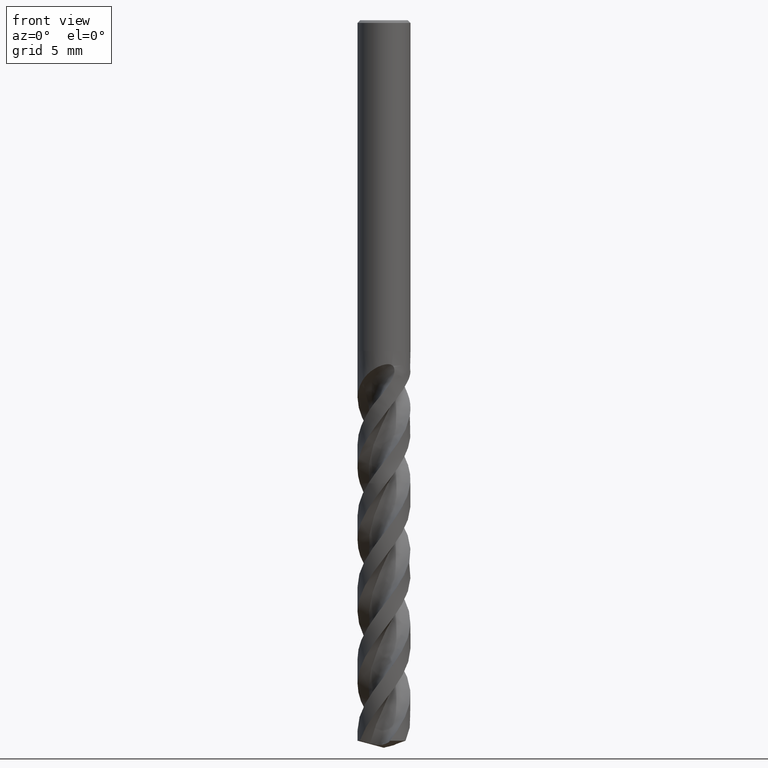
[diagram: clean part render]
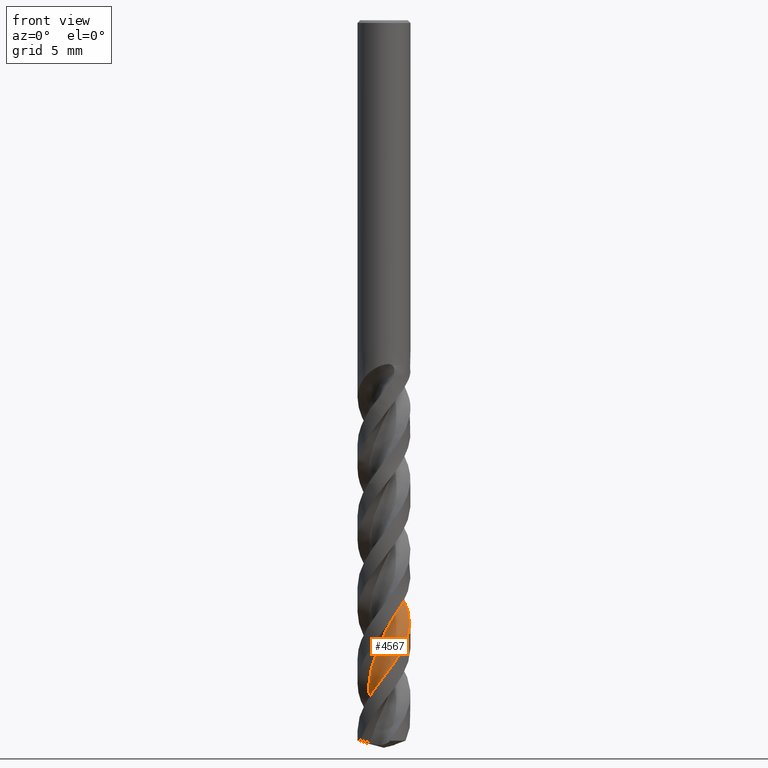
[diagram: same view with one face highlighted and labeled with its STEP entity id]
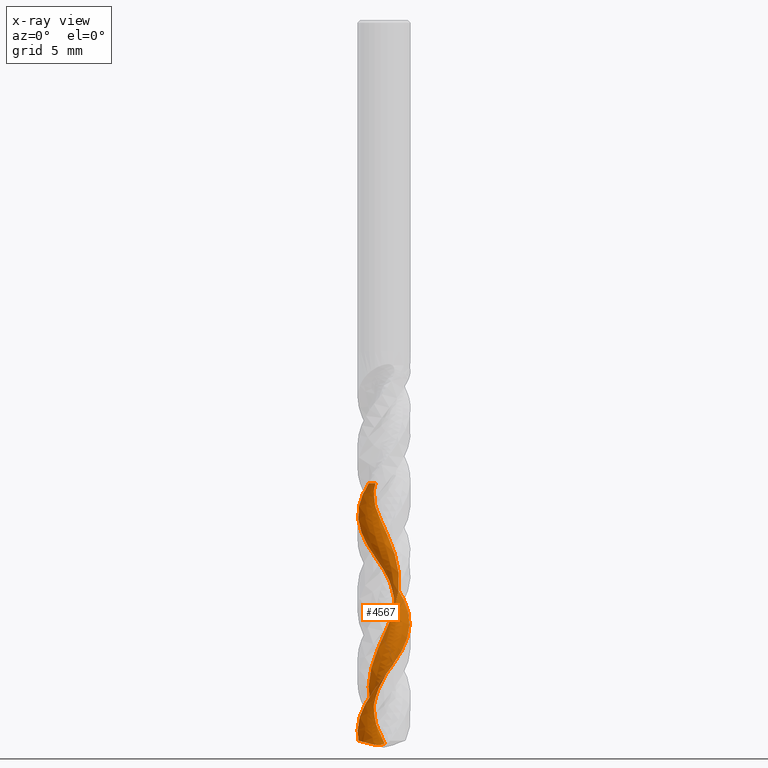
[diagram: x-ray of the same camera — body ghosted, the highlighted face saturated]
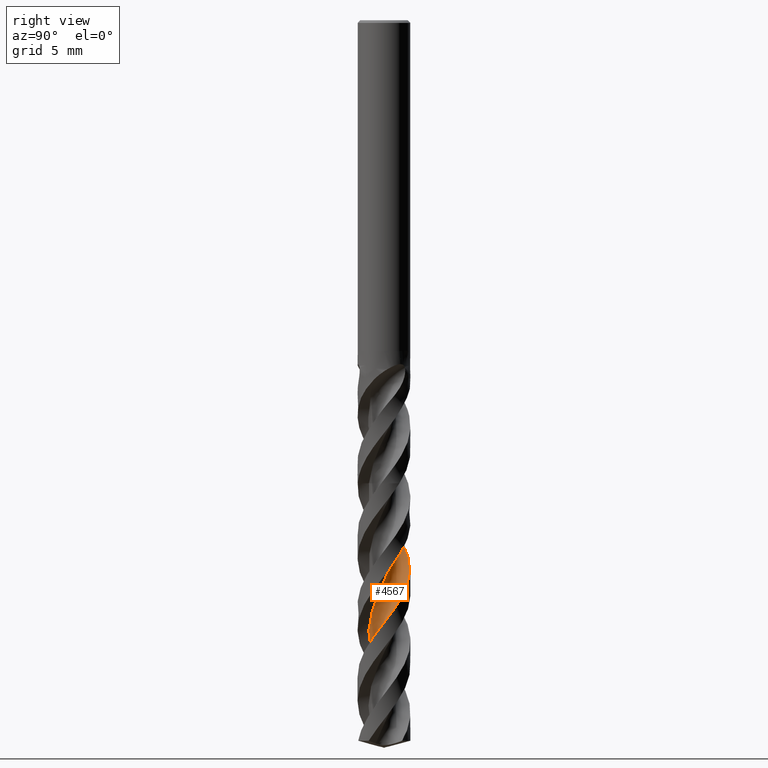
[diagram: same view with one face highlighted and labeled with its STEP entity id]
A machine part, front view. The second image highlights one B-rep face of the part: STEP entity #4567.
The next image is the same camera in x-ray: the body ghosted, the highlighted face saturated — about 0% of this face is hidden behind the body in this view.
A second angle (right view) of the same face is appended — the face is thin or edge-on in the first view.
In plain terms, the highlighted face is a freeform B-spline surface patch.
Its self-contained STEP definition (entity closure, byte-faithful):
#3409 = VERTEX_POINT('', #3410);
#3410 = CARTESIAN_POINT('', (-1.12872406072463, 0.324337716988651, -35.));
#3416 = EDGE_CURVE('', #3409, #3417, #3419, .T.);
#3417 = VERTEX_POINT('', #3418);
#3418 = CARTESIAN_POINT('', (-1.15162218004962, -1.60380954161772, -35.));
#3419 = B_SPLINE_CURVE_WITH_KNOTS('', 3, (#3420, #3421, #3422, #3423, #3424, #3425, #3426, #3427, #3428, #3429, #3430, #3431, #3432, #3433, #3434, #3435, #3436, #3437, #3438, #3439, #3440, #3441, #3442, #3443, #3444, #3445, #3446, #3447, #3448, #3449, #3450, #3451, #3452, #3453, #3454, #3455, #3456, #3457, #3458, #3459, #3460, #3461, #3462, #3463, #3464, #3465, #3466, #3467, #3468, #3469, #3470, #3471, #3472, #3473, #3474, #3475, #3476, #3477, #3478, #3479, #3480), .UNSPECIFIED., .F., .U., (4, 3, 3, 3, 3, 3, 3, 3, 3, 3, 3, 3, 3, 3, 3, 3, 3, 3, 3, 3, 4), (0., 0.132274041589049, 0.264328185654898, 0.396168736497773, 0.527800426196674, 0.659226549305238, 0.790449055360957, 0.921468604765539, 1.05228459137789, 1.11051912152675, 1.1278036418208, 1.1451136647213, 1.27736103606848, 1.40938935170899, 1.54120471936842, 1.6728116931157, 1.80421340263891, 1.93541164113192, 2.0664069170595, 2.19719847290444, 2.25856731137208), .UNSPECIFIED.);
#3420 = CARTESIAN_POINT('', (-1.12872406072463, 0.324337716988653, -35.));
#3421 = CARTESIAN_POINT('', (-1.09290940281092, 0.298620851392061, -35.));
#3422 = CARTESIAN_POINT('', (-1.05848796539157, 0.270844654251443, -35.));
#3423 = CARTESIAN_POINT('', (-1.02578503039606, 0.241271610101942, -35.));
#3424 = CARTESIAN_POINT('', (-0.993136462034546, 0.211747729333886, -35.));
#3425 = CARTESIAN_POINT('', (-0.962098083783262, 0.180340222433975, -35.));
#3426 = CARTESIAN_POINT('', (-0.932962235603804, 0.1473449060614, -35.));
#3427 = CARTESIAN_POINT('', (-0.903873513697898, 0.114402958524896, -35.));
#3428 = CARTESIAN_POINT('', (-0.876590049891368, 0.0797751788245011, -35.));
#3429 = CARTESIAN_POINT('', (-0.851367989207552, 0.0437866625383459, -35.));
#3430 = CARTESIAN_POINT('', (-0.826185885186645, 0.00785515908043942, -35.));
#3431 = CARTESIAN_POINT('', (-0.802980020178042, -0.0295449363852624, -35.));
#3432 = CARTESIAN_POINT('', (-0.781967569415685, -0.0680636099946282, -35.));
#3433 = CARTESIAN_POINT('', (-0.760987933379537, -0.106522129757938, -35.));
#3434 = CARTESIAN_POINT('', (-0.742129551837363, -0.146215416687498, -35.));
#3435 = CARTESIAN_POINT('', (-0.725568363986257, -0.186773152417621, -35.));
#3436 = CARTESIAN_POINT('', (-0.709032834202071, -0.227268052492061, -35.));
#3437 = CARTESIAN_POINT('', (-0.694736060802557, -0.268750355034362, -35.));
#3438 = CARTESIAN_POINT('', (-0.682811013465717, -0.310834246528576, -35.));
#3439 = CARTESIAN_POINT('', (-0.670904410127129, -0.35285304853516, -35.));
#3440 = CARTESIAN_POINT('', (-0.661325352175291, -0.395601538574058, -35.));
#3441 = CARTESIAN_POINT('', (-0.654162656600336, -0.438683352802704, -35.));
#3442 = CARTESIAN_POINT('', (-0.647011089580759, -0.481698231566844, -35.));
#3443 = CARTESIAN_POINT('', (-0.642246307738612, -0.525178029871743, -35.));
#3444 = CARTESIAN_POINT('', (-0.639912353256686, -0.568720852040333, -35.));
#3445 = CARTESIAN_POINT('', (-0.638873361416594, -0.588104536374398, -35.));
#3446 = CARTESIAN_POINT('', (-0.63831386958497, -0.607519868239431, -35.));
#3447 = CARTESIAN_POINT('', (-0.63823490451076, -0.626931217675354, -35.));
#3448 = CARTESIAN_POINT('', (-0.638211466982815, -0.632692676768484, -35.));
#3449 = CARTESIAN_POINT('', (-0.638230335306286, -0.638454463269296, -35.));
#3450 = CARTESIAN_POINT('', (-0.638291506429496, -0.644215645291521, -35.));
#3451 = CARTESIAN_POINT('', (-0.63835276780821, -0.649985327703415, -35.));
#3452 = CARTESIAN_POINT('', (-0.638456460227657, -0.655754715594748, -35.));
#3453 = CARTESIAN_POINT('', (-0.638602566867554, -0.661522873094368, -35.));
#3454 = CARTESIAN_POINT('', (-0.639718811437172, -0.705591195315898, -35.));
#3455 = CARTESIAN_POINT('', (-0.643320386160071, -0.749665987833972, -35.));
#3456 = CARTESIAN_POINT('', (-0.649373269914577, -0.793330912242634, -35.));
#3457 = CARTESIAN_POINT('', (-0.655416127619304, -0.836923509687249, -35.));
#3458 = CARTESIAN_POINT('', (-0.663921134700632, -0.880244518751045, -35.));
#3459 = CARTESIAN_POINT('', (-0.674808216639319, -0.922886072757298, -35.));
#3460 = CARTESIAN_POINT('', (-0.685677738843888, -0.965458850359096, -35.));
#3461 = CARTESIAN_POINT('', (-0.69895566325369, -1.00748765258038, -35.));
#3462 = CARTESIAN_POINT('', (-0.714517380392535, -1.04857805128103, -35.));
#3463 = CARTESIAN_POINT('', (-0.73005449518666, -1.08960348798909, -35.));
#3464 = CARTESIAN_POINT('', (-0.74791665280019, -1.12982152691018, -35.));
#3465 = CARTESIAN_POINT('', (-0.767936750432675, -1.1688559230756, -35.));
#3466 = CARTESIAN_POINT('', (-0.787925623201542, -1.20782943823439, -35.));
#3467 = CARTESIAN_POINT('', (-0.81012787533567, -1.24574426001552, -35.));
#3468 = CARTESIAN_POINT('', (-0.834336447778548, -1.28224679333419, -35.));
#3469 = CARTESIAN_POINT('', (-0.858507534079178, -1.3186928037348, -35.));
#3470 = CARTESIAN_POINT('', (-0.8847536777115, -1.35384394430941, -35.));
#3471 = CARTESIAN_POINT('', (-0.912830861828689, -1.38737340626637, -35.));
#3472 = CARTESIAN_POINT('', (-0.940864610779491, -1.42085099842925, -35.));
#3473 = CARTESIAN_POINT('', (-0.970810398333114, -1.45281544909303, -35.));
#3474 = CARTESIAN_POINT('', (-1.00239066989055, -1.48297049354033, -35.));
#3475 = CARTESIAN_POINT('', (-1.03392182871865, -1.51307864173047, -35.));
#3476 = CARTESIAN_POINT('', (-1.0671795641028, -1.54147582646964, -35.));
#3477 = CARTESIAN_POINT('', (-1.10185658023759, -1.56789966261183, -35.));
#3478 = CARTESIAN_POINT('', (-1.11812741812134, -1.58029801754713, -35.));
#3479 = CARTESIAN_POINT('', (-1.13472722764993, -1.59227611394191, -35.));
#3480 = CARTESIAN_POINT('', (-1.15162218004962, -1.60380954161771, -35.));
#4116 = EDGE_CURVE('', #4117, #3417, #4119, .T.);
#4117 = VERTEX_POINT('', #4118);
#4118 = CARTESIAN_POINT('', (-1.99995587507944, -0.0132852450192218, -53.6790702224025));
#4119 = (
   BOUNDED_CURVE ()
   B_SPLINE_CURVE (3, (#4120, #4121, #4122, #4123, #4124, #4125, #4126, #4127, #4128, #4129, #4130, #4131, #4132, #4133, #4134, #4135, #4136, #4137, #4138, #4139, #4140, #4141, #4142, #4143, #4144, #4145, #4146, #4147, #4148, #4149, #4150, #4151, #4152, #4153, #4154, #4155, #4156, #4157, #4158, #4159, #4160, #4161, #4162, #4163, #4164, #4165, #4166, #4167, #4168, #4169, #4170, #4171, #4172, #4173, #4174, #4175, #4176, #4177, #4178, #4179, #4180, #4181, #4182, #4183, #4184, #4185, #4186, #4187, #4188, #4189, #4190, #4191), .UNSPECIFIED., .F., .U.)
   B_SPLINE_CURVE_WITH_KNOTS ((4, 1, 1, 1, 1, 1, 1, 1, 1, 1, 1, 1, 1, 1, 1, 1, 1, 1, 1, 1, 1, 1, 1, 1, 1, 1, 1, 1, 1, 1, 1, 1, 1, 1, 1, 1, 1, 1, 1, 1, 1, 1, 1, 1, 1, 1, 1, 1, 1, 1, 1, 1, 1, 1, 1, 1, 1, 1, 1, 1, 1, 1, 1, 1, 1, 1, 1, 1, 1, 4), (1.37092977759754, 1.62897196261682, 1.90046728971963, 2.17196261682243, 2.44345794392523, 2.71495327102804, 2.98644859813084, 3.25794392523364, 3.52943925233645, 3.80093457943925, 4.07242990654206, 4.34392523364486, 4.61542056074766, 4.88691588785047, 5.15841121495327, 5.42990654205607, 5.70140186915888, 5.97289719626168, 6.24439252336449, 6.51588785046729, 6.78738317757009, 7.0588785046729, 7.3303738317757, 7.6018691588785, 7.87336448598131, 8.14485981308411, 8.41635514018692, 8.68785046728972, 8.95934579439252, 9.23084112149533, 9.50233644859813, 9.77383177570093, 10.0453271028037, 10.3168224299065, 10.5883177570093, 10.8598130841121, 11.131308411215, 11.4028037383178, 11.6742990654206, 11.9457943925234, 12.2172897196262, 12.488785046729, 12.7602803738318, 13.0317757009346, 13.3032710280374, 13.5747663551402, 13.846261682243, 14.1177570093458, 14.3892523364486, 14.6607476635514, 14.9322429906542, 15.203738317757, 15.4752336448598, 15.7467289719626, 16.0182242990654, 16.2897196261682, 16.561214953271, 16.8327102803738, 17.1042056074766, 17.3757009345794, 17.6471962616822, 17.918691588785, 18.1901869158879, 18.4616822429907, 18.7331775700935, 19.0046728971963, 19.2761682242991, 19.5476635514019, 19.8191588785047, 20.05), .UNSPECIFIED.)
   CURVE ()
   GEOMETRIC_REPRESENTATION_ITEM ()
   RATIONAL_B_SPLINE_CURVE ((1., 1., 1., 1., 1., 1., 1., 1., 1., 1., 1., 1., 1., 1., 1., 1., 1., 1., 1., 1., 1., 1., 1., 1., 1., 1., 1., 1., 1., 1., 1., 1., 1., 1., 1., 1., 1., 1., 1., 1., 1., 1., 1., 1., 1., 1., 1., 1., 1., 1., 1., 1., 1., 1., 1., 1., 1., 1., 1., 1., 1., 1., 1., 1., 1., 1., 1., 1., 1., 1., 1., 1.))
   REPRESENTATION_ITEM ('')
);
#4120 = CARTESIAN_POINT('', (-1.99995587507945, -0.0132852450192178, -53.6790702224025));
#4121 = CARTESIAN_POINT('', (-1.99833657703195, -0.0798120904809262, -53.5930561607294));
#4122 = CARTESIAN_POINT('', (-1.98822731886404, -0.216047739361041, -53.4165436566887));
#4123 = CARTESIAN_POINT('', (-1.95209137674535, -0.41916937279682, -53.1495327102804));
#4124 = CARTESIAN_POINT('', (-1.89409419214995, -0.620381122977416, -52.8780373831776));
#4125 = CARTESIAN_POINT('', (-1.81554756689524, -0.81410453967465, -52.6065420560748));
#4126 = CARTESIAN_POINT('', (-1.7173752565557, -0.998260907903669, -52.335046728972));
#4127 = CARTESIAN_POINT('', (-1.60070917766813, -1.17088175238486, -52.0635514018691));
#4128 = CARTESIAN_POINT('', (-1.46687659532462, -1.33012945681208, -51.7920560747664));
#4129 = CARTESIAN_POINT('', (-1.3173852822651, -1.47431642697319, -51.5205607476635));
#4130 = CARTESIAN_POINT('', (-1.15390682485569, -1.60192259836581, -51.2490654205607));
#4131 = CARTESIAN_POINT('', (-0.978258254392367, -1.71161111236143, -50.9775700934579));
#4132 = CARTESIAN_POINT('', (-0.7923822029413, -1.8022420031828, -50.7060747663551));
#4133 = CARTESIAN_POINT('', (-0.598325796329519, -1.87288375955672, -50.4345794392523));
#4134 = CARTESIAN_POINT('', (-0.398218509473912, -1.92282264730974, -50.1630841121495));
#4135 = CARTESIAN_POINT('', (-0.194249219080523, -1.95156970278601, -49.8915887850467));
#4136 = CARTESIAN_POINT('', (0.0113573037515578, -1.9588653313721, -49.6200934579439));
#4137 = CARTESIAN_POINT('', (0.216364213519756, -1.94468147040878, -49.3485981308411));
#4138 = CARTESIAN_POINT('', (0.418546472971798, -1.90922130108743, -49.0771028037383));
#4139 = CARTESIAN_POINT('', (0.615714548631044, -1.85291651931587, -48.8056074766355));
#4140 = CARTESIAN_POINT('', (0.805737672087548, -1.77642220073777, -48.5341121495327));
#4141 = CARTESIAN_POINT('', (0.986566425150221, -1.68060931984823, -48.2626168224299));
#4142 = CARTESIAN_POINT('', (1.15625441460973, -1.56655500721815, -47.9911214953271));
#4143 = CARTESIAN_POINT('', (1.31297881238374, -1.43553065198098, -47.7196261682243));
#4144 = CARTESIAN_POINT('', (1.455059549097, -1.28898797871832, -47.4481308411215));
#4145 = CARTESIAN_POINT('', (1.58097696355869, -1.1285432484868, -47.1766355140187));
#4146 = CARTESIAN_POINT('', (1.68938772698646, -0.955959752755741, -46.9051401869159));
#4147 = CARTESIAN_POINT('', (1.77913887902076, -0.773128786285325, -46.6336448598131));
#4148 = CARTESIAN_POINT('', (1.84927983238741, -0.582049300300143, -46.3621495327103));
#4149 = CARTESIAN_POINT('', (1.89907222429608, -0.384806450553176, -46.0906542056075));
#4150 = CARTESIAN_POINT('', (1.92799751509313, -0.183549265903065, -45.8191588785047));
#4151 = CARTESIAN_POINT('', (1.93576225808895, 0.0195323282639969, -45.5476635514019));
#4152 = CARTESIAN_POINT('', (1.92230098861737, 0.222230891129448, -45.2761682242991));
#4153 = CARTESIAN_POINT('', (1.88777670501312, 0.422345007569946, -45.0046728971963));
#4154 = CARTESIAN_POINT('', (1.8325789390646, 0.617702743481951, -44.7331775700935));
#4155 = CARTESIAN_POINT('', (1.75731943836456, 0.806184770621422, -44.4616822429907));
#4156 = CARTESIAN_POINT('', (1.66282550758882, 0.985746919921331, -44.1901869158879));
#4157 = CARTESIAN_POINT('', (1.55013107983902, 1.15444192834356, -43.9186915887851));
#4158 = CARTESIAN_POINT('', (1.42046561254551, 1.31044015280393, -43.6471962616822));
#4159 = CARTESIAN_POINT('', (1.27524092480906, 1.45204903548935, -43.3757009345794));
#4160 = CARTESIAN_POINT('', (1.11603611424005, 1.57773111785791, -43.1042056074766));
#4161 = CARTESIAN_POINT('', (0.94458071111961, 1.68612041564154, -42.8327102803738));
#4162 = CARTESIAN_POINT('', (0.762736245861164, 1.77603698410791, -42.561214953271));
#4163 = CARTESIAN_POINT('', (0.572476422110761, 1.84649952151101, -42.2897196261682));
#4164 = CARTESIAN_POINT('', (0.375866102226779, 1.89673587888228, -42.0182242990654));
#4165 = CARTESIAN_POINT('', (0.175039324178707, 1.92619136588243, -41.7467289719626));
#4166 = CARTESIAN_POINT('', (-0.0278234210226803, 1.93453476513322, -41.4752336448598));
#4167 = CARTESIAN_POINT('', (-0.230518414507861, 1.92166199104938, -41.203738317757));
#4168 = CARTESIAN_POINT('', (-0.430842195152783, 1.88769735345935, -40.9322429906542));
#4169 = CARTESIAN_POINT('', (-0.626615060541412, 1.8329924109939, -40.6607476635514));
#4170 = CARTESIAN_POINT('', (-0.8157043378466, 1.75812242408877, -40.3892523364486));
#4171 = CARTESIAN_POINT('', (-0.996047181312901, 1.66388044223938, -40.1177570093458));
#4172 = CARTESIAN_POINT('', (-1.16567265763256, 1.55126908461494, -39.846261682243));
#4173 = CARTESIAN_POINT('', (-1.32272288755286, 1.42149009703837, -39.5747663551402));
#4174 = CARTESIAN_POINT('', (-1.46547302147393, 1.27593179142662, -39.3032710280374));
#4175 = CARTESIAN_POINT('', (-1.59234983849955, 1.11615449582935, -39.0317757009346));
#4176 = CARTESIAN_POINT('', (-1.70194877227549, 0.943874163979139, -38.7602803738318));
#4177 = CARTESIAN_POINT('', (-1.79304918285731, 0.760944312560954, -38.488785046729));
#4178 = CARTESIAN_POINT('', (-1.8646277116339, 0.569336472026023, -38.2172897196262));
#4179 = CARTESIAN_POINT('', (-1.91586957582229, 0.371119352532751, -37.9457943925234));
#4180 = CARTESIAN_POINT('', (-1.94617768004966, 0.168436940332942, -37.6742990654206));
#4181 = CARTESIAN_POINT('', (-1.9551794448429, -0.0365142485102512, -37.4028037383178));
#4182 = CARTESIAN_POINT('', (-1.94273127523383, -0.24150852090681, -37.1313084112149));
#4183 = CARTESIAN_POINT('', (-1.90892061692516, -0.444314722971963, -36.8598130841121));
#4184 = CARTESIAN_POINT('', (-1.85406557230821, -0.642720072229126, -36.5883177570093));
#4185 = CARTESIAN_POINT('', (-1.77871207382787, -0.83455385640444, -36.3168224299065));
#4186 = CARTESIAN_POINT('', (-1.68362863750062, -1.01771075007972, -36.0453271028037));
#4187 = CARTESIAN_POINT('', (-1.56979874455183, -1.19017350366656, -35.7738317757009));
#4188 = CARTESIAN_POINT('', (-1.43841092389463, -1.35003476488815, -35.5023364485981));
#4189 = CARTESIAN_POINT('', (-1.29821214768499, -1.48825616940166, -35.2443925233645));
#4190 = CARTESIAN_POINT('', (-1.19886176687481, -1.56885119820065, -35.0769470404984));
#4191 = CARTESIAN_POINT('', (-1.15162218004962, -1.60380954161772, -35.));
#4567 = ADVANCED_FACE('', (#4568), #4780, .T.);
#4568 = FACE_OUTER_BOUND('', #4569, .T.);
#4569 = EDGE_LOOP('', (#4570, #4571, #4652, #4754, #4772, #4779));
#4570 = ORIENTED_EDGE('', *, *, #3416, .F.);
#4571 = ORIENTED_EDGE('', *, *, #4572, .F.);
#4572 = EDGE_CURVE('', #4573, #3409, #4575, .T.);
#4573 = VERTEX_POINT('', #4574);
#4574 = CARTESIAN_POINT('', (0.0445131365815788, 1.19730044735725, -54.6789626732717));
#4575 = (
   BOUNDED_CURVE ()
   B_SPLINE_CURVE (3, (#4576, #4577, #4578, #4579, #4580, #4581, #4582, #4583, #4584, #4585, #4586, #4587, #4588, #4589, #4590, #4591, #4592, #4593, #4594, #4595, #4596, #4597, #4598, #4599, #4600, #4601, #4602, #4603, #4604, #4605, #4606, #4607, #4608, #4609, #4610, #4611, #4612, #4613, #4614, #4615, #4616, #4617, #4618, #4619, #4620, #4621, #4622, #4623, #4624, #4625, #4626, #4627, #4628, #4629, #4630, #4631, #4632, #4633, #4634, #4635, #4636, #4637, #4638, #4639, #4640, #4641, #4642, #4643, #4644, #4645, #4646, #4647, #4648, #4649, #4650, #4651), .UNSPECIFIED., .F., .U.)
   B_SPLINE_CURVE_WITH_KNOTS ((4, 1, 1, 1, 1, 1, 1, 1, 1, 1, 1, 1, 1, 1, 1, 1, 1, 1, 1, 1, 1, 1, 1, 1, 1, 1, 1, 1, 1, 1, 1, 1, 1, 1, 1, 1, 1, 1, 1, 1, 1, 1, 1, 1, 1, 1, 1, 1, 1, 1, 1, 1, 1, 1, 1, 1, 1, 1, 1, 1, 1, 1, 1, 1, 1, 1, 1, 1, 1, 1, 1, 1, 1, 4), (0.371037326728283, 0.542990654205607, 0.814485981308411, 1.08598130841121, 1.35747663551402, 1.62897196261682, 1.90046728971963, 2.17196261682243, 2.44345794392523, 2.71495327102804, 2.98644859813084, 3.25794392523364, 3.52943925233645, 3.80093457943925, 4.07242990654206, 4.34392523364486, 4.61542056074766, 4.88691588785047, 5.15841121495327, 5.42990654205607, 5.70140186915888, 5.97289719626168, 6.24439252336449, 6.51588785046729, 6.78738317757009, 7.0588785046729, 7.3303738317757, 7.6018691588785, 7.87336448598131, 8.14485981308411, 8.41635514018692, 8.68785046728972, 8.95934579439252, 9.23084112149533, 9.50233644859813, 9.77383177570093, 10.0453271028037, 10.3168224299065, 10.5883177570093, 10.8598130841121, 11.131308411215, 11.4028037383178, 11.6742990654206, 11.9457943925234, 12.2172897196262, 12.488785046729, 12.7602803738318, 13.0317757009346, 13.3032710280374, 13.5747663551402, 13.846261682243, 14.1177570093458, 14.3892523364486, 14.6607476635514, 14.9322429906542, 15.203738317757, 15.4752336448598, 15.7467289719626, 16.0182242990654, 16.2897196261682, 16.561214953271, 16.8327102803738, 17.1042056074766, 17.3757009345794, 17.6471962616822, 17.918691588785, 18.1901869158879, 18.4616822429907, 18.7331775700935, 19.0046728971963, 19.2761682242991, 19.5476635514019, 19.8191588785047, 20.05), .UNSPECIFIED.)
   CURVE ()
   GEOMETRIC_REPRESENTATION_ITEM ()
   RATIONAL_B_SPLINE_CURVE ((1., 1., 1., 1., 1., 1., 1., 1., 1., 1., 1., 1., 1., 1., 1., 1., 1., 1., 1., 1., 1., 1., 1., 1., 1., 1., 1., 1., 1., 1., 1., 1., 1., 1., 1., 1., 1., 1., 1., 1., 1., 1., 1., 1., 1., 1., 1., 1., 1., 1., 1., 1., 1., 1., 1., 1., 1., 1., 1., 1., 1., 1., 1., 1., 1., 1., 1., 1., 1., 1., 1., 1., 1., 1., 1., 1.))
   REPRESENTATION_ITEM ('')
);
#4576 = CARTESIAN_POINT('', (0.0445131365815609, 1.19730044735726, -54.6789626732717));
#4577 = CARTESIAN_POINT('', (0.017951046331021, 1.19777592352726, -54.6216448974459));
#4578 = CARTESIAN_POINT('', (-0.0505463084053243, 1.19673555171233, -54.4738286792526));
#4579 = CARTESIAN_POINT('', (-0.160343879849439, 1.18564255034425, -54.2355140186916));
#4580 = CARTESIAN_POINT('', (-0.283185390623932, 1.16006817555593, -53.9640186915888));
#4581 = CARTESIAN_POINT('', (-0.402457698588641, 1.12188291468223, -53.692523364486));
#4582 = CARTESIAN_POINT('', (-0.516878510181739, 1.07155009376104, -53.4210280373832));
#4583 = CARTESIAN_POINT('', (-0.625222719044247, 1.00966140325765, -53.1495327102804));
#4584 = CARTESIAN_POINT('', (-0.726335269527425, 0.936931000542621, -52.8780373831776));
#4585 = CARTESIAN_POINT('', (-0.819143221835798, 0.854187165919747, -52.6065420560748));
#4586 = CARTESIAN_POINT('', (-0.902666901562516, 0.762363098879376, -52.335046728972));
#4587 = CARTESIAN_POINT('', (-0.976030019031287, 0.66248655567078, -52.0635514018691));
#4588 = CARTESIAN_POINT('', (-1.03846865702861, 0.555668548373342, -51.7920560747664));
#4589 = CARTESIAN_POINT('', (-1.08933903715145, 0.443091198900204, -51.5205607476635));
#4590 = CARTESIAN_POINT('', (-1.12812398817452, 0.32599488605131, -51.2490654205607));
#4591 = CARTESIAN_POINT('', (-1.15443805356566, 0.205664820760842, -50.9775700934579));
#4592 = CARTESIAN_POINT('', (-1.16803118963367, 0.0834171926776138, -50.7060747663551));
#4593 = CARTESIAN_POINT('', (-1.16879102057163, -0.0394149655951372, -50.4345794392523));
#4594 = CARTESIAN_POINT('', (-1.15674363172409, -0.161496047711332, -50.1630841121495));
#4595 = CARTESIAN_POINT('', (-1.13205289760206, -0.281502126563975, -49.8915887850467));
#4596 = CARTESIAN_POINT('', (-1.09501835634121, -0.39813504203488, -49.6200934579439));
#4597 = CARTESIAN_POINT('', (-1.04607165729362, -0.510136176726032, -49.3485981308411));
#4598 = CARTESIAN_POINT('', (-0.985771623111214, -0.616299776590234, -49.0771028037383));
#4599 = CARTESIAN_POINT('', (-0.914797981872406, -0.715485678532648, -48.8056074766355));
#4600 = CARTESIAN_POINT('', (-0.833943838382224, -0.806631313599746, -48.5341121495327));
#4601 = CARTESIAN_POINT('', (-0.744106966604537, -0.888762862237476, -48.2626168224299));
#4602 = CARTESIAN_POINT('', (-0.646280017137505, -0.961005447202019, -47.9911214953271));
#4603 = CARTESIAN_POINT('', (-0.541539744601796, -1.02259225994878, -47.7196261682243));
#4604 = CARTESIAN_POINT('', (-0.431035369668813, -1.07287252760105, -47.4481308411215));
#4605 = CARTESIAN_POINT('', (-0.315976199117168, -1.11131823979311, -47.1766355140187));
#4606 = CARTESIAN_POINT('', (-0.197618634686438, -1.13752956766705, -46.9051401869159));
#4607 = CARTESIAN_POINT('', (-0.0772527075269756, -1.15123892094691, -46.6336448598131));
#4608 = CARTESIAN_POINT('', (0.0438117203336019, -1.15231360317751, -46.3621495327103));
#4609 = CARTESIAN_POINT('', (0.16425894291597, -1.14075703975607, -46.0906542056075));
#4610 = CARTESIAN_POINT('', (0.282781439324076, -1.11670856815485, -45.8191588785047));
#4611 = CARTESIAN_POINT('', (0.398093798409178, -1.08044179458378, -45.5476635514019));
#4612 = CARTESIAN_POINT('', (0.508946393876994, -1.0323615361244, -45.2761682242991));
#4613 = CARTESIAN_POINT('', (0.614138667423192, -0.972999381931505, -45.0046728971963));
#4614 = CARTESIAN_POINT('', (0.712531881700022, -0.903007921301515, -44.7331775700935));
#4615 = CARTESIAN_POINT('', (0.803061210536099, -0.823153700103968, -44.4616822429907));
#4616 = CARTESIAN_POINT('', (0.884747040794498, -0.734308980128593, -44.1901869158879));
#4617 = CARTESIAN_POINT('', (0.956705368489016, -0.637442388184437, -43.9186915887851));
#4618 = CARTESIAN_POINT('', (1.0181571812019, -0.53360855317684, -43.6471962616822));
#4619 = CARTESIAN_POINT('', (1.06843672936164, -0.423936839769985, -43.3757009345794));
#4620 = CARTESIAN_POINT('', (1.10699860044172, -0.309619296512539, -43.1042056074766));
#4621 = CARTESIAN_POINT('', (1.13342352251312, -0.191897944370441, -42.8327102803738));
#4622 = CARTESIAN_POINT('', (1.14742283670151, -0.0720515383926255, -42.561214953271));
#4623 = CARTESIAN_POINT('', (1.14884159183226, 0.0486180593347821, -42.2897196261682));
#4624 = CARTESIAN_POINT('', (1.13766022875431, 0.168799753267104, -42.0182242990654));
#4625 = CARTESIAN_POINT('', (1.11399483637601, 0.287187189758037, -41.7467289719626));
#4626 = CARTESIAN_POINT('', (1.07809597617549, 0.402492688337737, -41.4752336448598));
#4627 = CARTESIAN_POINT('', (1.03034608671751, 0.513460983437523, -41.203738317757));
#4628 = CARTESIAN_POINT('', (0.971255494370047, 0.61888263295171, -40.9322429906542));
#4629 = CARTESIAN_POINT('', (0.901457070819012, 0.717606953356246, -40.6607476635514));
#4630 = CARTESIAN_POINT('', (0.821699591984668, 0.808554345866195, -40.3892523364486));
#4631 = CARTESIAN_POINT('', (0.732839866405996, 0.89072788426214, -40.1177570093458));
#4632 = CARTESIAN_POINT('', (0.635833713944732, 0.963224042490404, -39.846261682243));
#4633 = CARTESIAN_POINT('', (0.531725887638804, 1.0252424488693, -39.5747663551402));
#4634 = CARTESIAN_POINT('', (0.421639042583883, 1.07609456362853, -39.3032710280374));
#4635 = CARTESIAN_POINT('', (0.306761865729183, 1.11521118747339, -39.0317757009346));
#4636 = CARTESIAN_POINT('', (0.188336489336566, 1.14214872079107, -38.7602803738318));
#4637 = CARTESIAN_POINT('', (0.0676453184789251, 1.15659410588615, -38.488785046729));
#4638 = CARTESIAN_POINT('', (-0.0540025907345068, 1.15836839811783, -38.2172897196262));
#4639 = CARTESIAN_POINT('', (-0.175285460589309, 1.14742892588048, -37.9457943925234));
#4640 = CARTESIAN_POINT('', (-0.294882883742649, 1.12387001387959, -37.6742990654206));
#4641 = CARTESIAN_POINT('', (-0.411489930615734, 1.08792225896329, -37.4028037383178));
#4642 = CARTESIAN_POINT('', (-0.523831124551428, 1.03995036272623, -37.1313084112149));
#4643 = CARTESIAN_POINT('', (-0.630674138075055, 0.98044954005755, -36.8598130841121));
#4644 = CARTESIAN_POINT('', (-0.730843066088462, 0.910040537606423, -36.5883177570093));
#4645 = CARTESIAN_POINT('', (-0.823231135802672, 0.829463310638232, -36.3168224299065));
#4646 = CARTESIAN_POINT('', (-0.906812718638424, 0.739569420802997, -36.0453271028037));
#4647 = CARTESIAN_POINT('', (-0.980654516146199, 0.641313230792554, -35.7738317757009));
#4648 = CARTESIAN_POINT('', (-1.04392580015481, 0.535741984585742, -35.5023364485981));
#4649 = CARTESIAN_POINT('', (-1.09331298041872, 0.429563111723223, -35.2443925233645));
#4650 = CARTESIAN_POINT('', (-1.11858950162251, 0.357791397509595, -35.0769470404984));
#4651 = CARTESIAN_POINT('', (-1.12872406072463, 0.324337716988651, -35.));
#4652 = ORIENTED_EDGE('', *, *, #4653, .T.);
#4653 = EDGE_CURVE('', #4573, #4654, #4656, .T.);
#4654 = VERTEX_POINT('', #4655);
#4655 = CARTESIAN_POINT('', (-1.91361050525201, 0.581459228311969, -54.4641016151378));
#4656 = B_SPLINE_CURVE_WITH_KNOTS('', 3, (#4657, #4658, #4659, #4660, #4661, #4662, #4663, #4664, #4665, #4666, #4667, #4668, #4669, #4670, #4671, #4672, #4673, #4674, #4675, #4676, #4677, #4678, #4679, #4680, #4681, #4682, #4683, #4684, #4685, #4686, #4687, #4688, #4689, #4690, #4691, #4692, #4693, #4694, #4695, #4696, #4697, #4698, #4699, #4700, #4701, #4702, #4703, #4704, #4705, #4706, #4707, #4708, #4709, #4710, #4711, #4712, #4713, #4714, #4715, #4716, #4717, #4718, #4719, #4720, #4721, #4722, #4723, #4724, #4725, #4726, #4727, #4728, #4729, #4730, #4731, #4732, #4733, #4734, #4735, #4736, #4737, #4738, #4739, #4740, #4741, #4742, #4743, #4744, #4745, #4746, #4747, #4748, #4749, #4750, #4751, #4752, #4753), .UNSPECIFIED., .F., .U., (4, 3, 3, 3, 3, 3, 3, 3, 3, 3, 3, 3, 3, 3, 3, 3, 3, 3, 3, 3, 3, 3, 3, 3, 3, 3, 3, 3, 3, 3, 3, 3, 4), (0., 0.0877080995873499, 0.12662621630755, 0.165535512039723, 0.253018531865538, 0.311291006764945, 0.36951954242687, 0.427713768553048, 0.485891155076982, 0.544076218903832, 0.602297061287682, 0.660579414385174, 0.718939947741682, 0.7773816531357, 0.835893488471037, 0.894454239639458, 0.953038449939318, 1.0116218149144, 1.07018452466139, 1.12871242776828, 1.15468395740376, 1.24308290292342, 1.33130838257296, 1.41936671456184, 1.50727175188785, 1.59503937964817, 1.68268476818556, 1.77022123004835, 1.90125821246025, 2.03200792566598, 2.16250214788772, 2.29276272624982, 2.34530534595918), .UNSPECIFIED.);
#4657 = CARTESIAN_POINT('', (0.0445131365815762, 1.19730044735725, -54.6789626732717));
#4658 = CARTESIAN_POINT('', (0.0370559286144701, 1.1700120749704, -54.686343758479));
#4659 = CARTESIAN_POINT('', (0.0282583597257163, 1.14303141387236, -54.6936430585586));
#4660 = CARTESIAN_POINT('', (0.0181444600236547, 1.11654599678597, -54.700782901106));
#4661 = CARTESIAN_POINT('', (0.0136566883018513, 1.10479380333519, -54.7039510147344));
#4662 = CARTESIAN_POINT('', (0.00890699359818122, 1.09313038935582, -54.7070898943765));
#4663 = CARTESIAN_POINT('', (0.00389917318517644, 1.08157220943436, -54.7101917166648));
#4664 = CARTESIAN_POINT('', (-0.00110751217999891, 1.07001664923285, -54.7132928359095));
#4665 = CARTESIAN_POINT('', (-0.00637456179688763, 1.05856086241408, -54.7163583704203));
#4666 = CARTESIAN_POINT('', (-0.011897028329132, 1.0472211965477, -54.719379819067));
#4667 = CARTESIAN_POINT('', (-0.02431365114475, 1.02172527853789, -54.7261731944518));
#4668 = CARTESIAN_POINT('', (-0.0380469359877291, 0.996772678066953, -54.7327566139139));
#4669 = CARTESIAN_POINT('', (-0.0530172264868987, 0.972544248458566, -54.7390206307968));
#4670 = CARTESIAN_POINT('', (-0.0629889430449991, 0.956405681694206, -54.7431930949767));
#4671 = CARTESIAN_POINT('', (-0.0735223506822376, 0.940565636163743, -54.7472293355064));
#4672 = CARTESIAN_POINT('', (-0.0845851068623231, 0.925074196505829, -54.7510930964567));
#4673 = CARTESIAN_POINT('', (-0.0956395213841585, 0.909594437869654, -54.7549539440124));
#4674 = CARTESIAN_POINT('', (-0.107235094925804, 0.894445241786111, -54.7586468692412));
#4675 = CARTESIAN_POINT('', (-0.119331946787809, 0.879672362487003, -54.7621336104054));
#4676 = CARTESIAN_POINT('', (-0.131421670918254, 0.864908187693765, -54.7656182971049));
#4677 = CARTESIAN_POINT('', (-0.144025982370567, 0.850503012252606, -54.7689008949017));
#4678 = CARTESIAN_POINT('', (-0.157097254961569, 0.836496819983527, -54.7719428908324));
#4679 = CARTESIAN_POINT('', (-0.170164745132115, 0.822494680671632, -54.774984006504));
#4680 = CARTESIAN_POINT('', (-0.183713905812807, 0.808875280978186, -54.7777879476853));
#4681 = CARTESIAN_POINT('', (-0.19768965522251, 0.795671416586082, -54.7803185568505));
#4682 = CARTESIAN_POINT('', (-0.211667248923751, 0.782465809763239, -54.7828494999643));
#4683 = CARTESIAN_POINT('', (-0.226087295831661, 0.769660917676302, -54.7851096741166));
#4684 = CARTESIAN_POINT('', (-0.240888341759808, 0.757281149418702, -54.7870685583916));
#4685 = CARTESIAN_POINT('', (-0.255698488993867, 0.744893768722186, -54.7890286472033));
#4686 = CARTESIAN_POINT('', (-0.270906225816306, 0.732918401826691, -54.7906890208483));
#4687 = CARTESIAN_POINT('', (-0.286445824027047, 0.72137036720316, -54.792028197292));
#4688 = CARTESIAN_POINT('', (-0.30200183992837, 0.709810132002967, -54.7933687885847));
#4689 = CARTESIAN_POINT('', (-0.317906440215549, 0.698665988222294, -54.7943887823696));
#4690 = CARTESIAN_POINT('', (-0.334092681912147, 0.687944240225438, -54.7950783860611));
#4691 = CARTESIAN_POINT('', (-0.350300635919609, 0.677208110018686, -54.7957689147907));
#4692 = CARTESIAN_POINT('', (-0.366806422313344, 0.666884995857854, -54.7961288490292));
#4693 = CARTESIAN_POINT('', (-0.383545431695068, 0.656973203962613, -54.7961611165773));
#4694 = CARTESIAN_POINT('', (-0.400307722897902, 0.647047626032578, -54.7961934290055));
#4695 = CARTESIAN_POINT('', (-0.417318300556497, 0.637525693083985, -54.7958973411803));
#4696 = CARTESIAN_POINT('', (-0.434518137886147, 0.628399562748155, -54.7952875144559));
#4697 = CARTESIAN_POINT('', (-0.451738614989645, 0.619262481072343, -54.7946769559405));
#4698 = CARTESIAN_POINT('', (-0.469161881187688, 0.610514978093817, -54.7937516741195));
#4699 = CARTESIAN_POINT('', (-0.486736694880417, 0.602145363117828, -54.7925353913633));
#4700 = CARTESIAN_POINT('', (-0.504326201098994, 0.593768751152482, -54.7913180917961));
#4701 = CARTESIAN_POINT('', (-0.522079080791135, 0.585764985216781, -54.7898087555344));
#4702 = CARTESIAN_POINT('', (-0.539952693181942, 0.578120777032875, -54.788036684257));
#4703 = CARTESIAN_POINT('', (-0.557833465648636, 0.570473506619045, -54.7862639030971));
#4704 = CARTESIAN_POINT('', (-0.575845134143493, 0.563181686342658, -54.7842273979846));
#4705 = CARTESIAN_POINT('', (-0.593953244586091, 0.556232235471134, -54.7819586999854));
#4706 = CARTESIAN_POINT('', (-0.612061093742682, 0.549282884874803, -54.7796900347217));
#4707 = CARTESIAN_POINT('', (-0.630274067533956, 0.542672525604458, -54.7771882569798));
#4708 = CARTESIAN_POINT('', (-0.648564710486626, 0.536389476346678, -54.7744845208112));
#4709 = CARTESIAN_POINT('', (-0.666848904553979, 0.530108642356246, -54.7717817379216));
#4710 = CARTESIAN_POINT('', (-0.685218219048589, 0.524152309278106, -54.7688761315674));
#4711 = CARTESIAN_POINT('', (-0.703650715231158, 0.518510812842483, -54.7657968027277));
#4712 = CARTESIAN_POINT('', (-0.722072256093122, 0.512872669420013, -54.7627193040814));
#4713 = CARTESIAN_POINT('', (-0.740563458055809, 0.507547000554534, -54.7594672479342));
#4714 = CARTESIAN_POINT('', (-0.759106462624082, 0.50252634900681, -54.7560668264138));
#4715 = CARTESIAN_POINT('', (-0.767334848865702, 0.50029845438665, -54.7545579025741));
#4716 = CARTESIAN_POINT('', (-0.775574314274251, 0.498130415785873, -54.7530195744077));
#4717 = CARTESIAN_POINT('', (-0.783823487861786, 0.496021717244077, -54.7514539335432));
#4718 = CARTESIAN_POINT('', (-0.811901088864953, 0.488844368426736, -54.7461249828257));
#4719 = CARTESIAN_POINT('', (-0.840102363533242, 0.482350892089839, -54.7404784692011));
#4720 = CARTESIAN_POINT('', (-0.868380229095149, 0.476527580529243, -54.7345865177741));
#4721 = CARTESIAN_POINT('', (-0.896602604803344, 0.470715696093722, -54.7287061281646));
#4722 = CARTESIAN_POINT('', (-0.924918421035564, 0.465568001382543, -54.7225775998263));
#4723 = CARTESIAN_POINT('', (-0.953287063603982, 0.461079561157121, -54.7162583042616));
#4724 = CARTESIAN_POINT('', (-0.981601960335479, 0.456599624510106, -54.7099509809239));
#4725 = CARTESIAN_POINT('', (-1.00998523780679, 0.452774098819895, -54.7034499648858));
#4726 = CARTESIAN_POINT('', (-1.03839877912106, 0.449604788562783, -54.6968007785116));
#4727 = CARTESIAN_POINT('', (-1.06676285726542, 0.44644099553881, -54.6901631672463));
#4728 = CARTESIAN_POINT('', (-1.09517216760792, 0.443929562939982, -54.6833742394898));
#4729 = CARTESIAN_POINT('', (-1.12358863814234, 0.44207732592873, -54.6764704855104));
#4730 = CARTESIAN_POINT('', (-1.15196068921011, 0.440227984258759, -54.6695775231974));
#4731 = CARTESIAN_POINT('', (-1.18035476313698, 0.439034892017287, -54.6625663646855));
#4732 = CARTESIAN_POINT('', (-1.20873126360275, 0.438508574034792, -54.655466823394));
#4733 = CARTESIAN_POINT('', (-1.23706824241964, 0.43798298908682, -54.6483771700581));
#4734 = CARTESIAN_POINT('', (-1.26540274235386, 0.438122110335718, -54.6411955275026));
#4735 = CARTESIAN_POINT('', (-1.2936925549348, 0.438939103207806, -54.6339468849254));
#4736 = CARTESIAN_POINT('', (-1.3219472086185, 0.439755080711964, -54.6267072510427));
#4737 = CARTESIAN_POINT('', (-1.35017275335583, 0.441247750946944, -54.6193967533621));
#4738 = CARTESIAN_POINT('', (-1.37832352794982, 0.443432062631891, -54.6120369812834));
#4739 = CARTESIAN_POINT('', (-1.42046359709194, 0.446701849938248, -54.6010198313564));
#4740 = CARTESIAN_POINT('', (-1.46248276280179, 0.451525612993923, -54.5898805676732));
#4741 = CARTESIAN_POINT('', (-1.50420917752838, 0.457957578685267, -54.578682770557));
#4742 = CARTESIAN_POINT('', (-1.54584411644552, 0.464375443733843, -54.5675095221005));
#4743 = CARTESIAN_POINT('', (-1.5872461649769, 0.472403953351753, -54.5562620268188));
#4744 = CARTESIAN_POINT('', (-1.62821777599328, 0.482096715157867, -54.5449980989613));
#4745 = CARTESIAN_POINT('', (-1.66910932658767, 0.491770536859329, -54.5337561813396));
#4746 = CARTESIAN_POINT('', (-1.70963587264475, 0.503117758262632, -54.5224801989191));
#4747 = CARTESIAN_POINT('', (-1.74956943447499, 0.516184869563295, -54.5112265910556));
#4748 = CARTESIAN_POINT('', (-1.78943149711273, 0.52922858480652, -54.4999931322556));
#4749 = CARTESIAN_POINT('', (-1.82877245046374, 0.544009615727599, -54.4887621791095));
#4750 = CARTESIAN_POINT('', (-1.86732965026874, 0.560559065268757, -54.4775920759419));
#4751 = CARTESIAN_POINT('', (-1.88288229337754, 0.567234541798757, -54.4730864420024));
#4752 = CARTESIAN_POINT('', (-1.89831558270984, 0.574200948904302, -54.4685882794041));
#4753 = CARTESIAN_POINT('', (-1.91361050525203, 0.581459228311919, -54.4641016151378));
#4754 = ORIENTED_EDGE('', *, *, #4755, .T.);
#4755 = EDGE_CURVE('', #4654, #4756, #4758, .T.);
#4756 = VERTEX_POINT('', #4757);
#4757 = CARTESIAN_POINT('', (-2., 3.41041821178594E-15, -53.6963561111727));
#4758 = B_SPLINE_CURVE_WITH_KNOTS('', 3, (#4759, #4760, #4761, #4762, #4763, #4764, #4765, #4766, #4767, #4768, #4769, #4770, #4771), .UNSPECIFIED., .F., .U., (4, 3, 3, 3, 4), (0., 0.294896228856364, 0.589676447572975, 0.884337966588467, 0.96813872161955), .UNSPECIFIED.);
#4759 = CARTESIAN_POINT('', (-1.91361050525202, 0.58145922831192, -54.4641016151378));
#4760 = CARTESIAN_POINT('', (-1.93102250947995, 0.524155478391596, -54.3861545483565));
#4761 = CARTESIAN_POINT('', (-1.94586450017502, 0.466045709992217, -54.3081795734963));
#4762 = CARTESIAN_POINT('', (-1.95806508355601, 0.407407816025441, -54.230234810861));
#4763 = CARTESIAN_POINT('', (-1.97026086731176, 0.348792989801174, -54.152320711157));
#4764 = CARTESIAN_POINT('', (-1.97982648342671, 0.289606509211319, -54.0743786472226));
#4765 = CARTESIAN_POINT('', (-1.9867158475077, 0.230130704734195, -53.9964671123143));
#4766 = CARTESIAN_POINT('', (-1.99360243743559, 0.17067884949032, -53.9185869501893));
#4767 = CARTESIAN_POINT('', (-1.99782001630788, 0.110894207377972, -53.8406785414649));
#4768 = CARTESIAN_POINT('', (-1.99934808627376, 0.0510610410483939, -53.7628009126197));
#4769 = CARTESIAN_POINT('', (-1.99978266428487, 0.0340446877387668, -53.7406527742436));
#4770 = CARTESIAN_POINT('', (-2., 0.0170221304540005, -53.7185040737503));
#4771 = CARTESIAN_POINT('', (-2., 3.43949336454114E-15, -53.6963561111727));
#4772 = ORIENTED_EDGE('', *, *, #4773, .F.);
#4773 = EDGE_CURVE('', #4117, #4756, #4774, .T.);
#4774 = CIRCLE('', #4775, 5.38586125736831);
#4775 = AXIS2_PLACEMENT_3D('', #4776, #4777, #4778);
#4776 = CARTESIAN_POINT('', (3.38584611267666, 0.0101269695577937, -53.6885728800412));
#4777 = DIRECTION('', (0.00237146764749304, -0.792875618671055, -0.60937888826098));
#4778 = DIRECTION('', (-0.999988995332693, -0.00434697691942942, 0.00176437104201153));
#4779 = ORIENTED_EDGE('', *, *, #4116, .T.);
#4780 = (
   BOUNDED_SURFACE ()
   B_SPLINE_SURFACE (3, 2, ((#4781, #4782, #4783, #4784, #4785), (#4786, #4787, #4788, #4789, #4790), (#4791, #4792, #4793, #4794, #4795), (#4796, #4797, #4798, #4799, #4800), (#4801, #4802, #4803, #4804, #4805), (#4806, #4807, #4808, #4809, #4810), (#4811, #4812, #4813, #4814, #4815), (#4816, #4817, #4818, #4819, #4820), (#4821, #4822, #4823, #4824, #4825), (#4826, #4827, #4828, #4829, #4830), (#4831, #4832, #4833, #4834, #4835), (#4836, #4837, #4838, #4839, #4840), (#4841, #4842, #4843, #4844, #4845), (#4846, #4847, #4848, #4849, #4850), (#4851, #4852, #4853, #4854, #4855), (#4856, #4857, #4858, #4859, #4860), (#4861, #4862, #4863, #4864, #4865), (#4866, #4867, #4868, #4869, #4870), (#4871, #4872, #4873, #4874, #4875), (#4876, #4877, #4878, #4879, #4880), (#4881, #4882, #4883, #4884, #4885), (#4886, #4887, #4888, #4889, #4890), (#4891, #4892, #4893, #4894, #4895), (#4896, #4897, #4898, #4899, #4900), (#4901, #4902, #4903, #4904, #4905), (#4906, #4907, #4908, #4909, #4910), (#4911, #4912, #4913, #4914, #4915), (#4916, #4917, #4918, #4919, #4920), (#4921, #4922, #4923, #4924, #4925), (#4926, #4927, #4928, #4929, #4930), (#4931, #4932, #4933, #4934, #4935), (#4936, #4937, #4938, #4939, #4940), (#4941, #4942, #4943, #4944, #4945), (#4946, #4947, #4948, #4949, #4950), (#4951, #4952, #4953, #4954, #4955), (#4956, #4957, #4958, #4959, #4960), (#4961, #4962, #4963, #4964, #4965), (#4966, #4967, #4968, #4969, #4970), (#4971, #4972, #4973, #4974, #4975), (#4976, #4977, #4978, #4979, #4980), (#4981, #4982, #4983, #4984, #4985), (#4986, #4987, #4988, #4989, #4990), (#4991, #4992, #4993, #4994, #4995), (#4996, #4997, #4998, #4999, #5000), (#5001, #5002, #5003, #5004, #5005), (#5006, #5007, #5008, #5009, #5010), (#5011, #5012, #5013, #5014, #5015), (#5016, #5017, #5018, #5019, #5020), (#5021, #5022, #5023, #5024, #5025), (#5026, #5027, #5028, #5029, #5030), (#5031, #5032, #5033, #5034, #5035), (#5036, #5037, #5038, #5039, #5040), (#5041, #5042, #5043, #5044, #5045), (#5046, #5047, #5048, #5049, #5050), (#5051, #5052, #5053, #5054, #5055), (#5056, #5057, #5058, #5059, #5060), (#5061, #5062, #5063, #5064, #5065), (#5066, #5067, #5068, #5069, #5070), (#5071, #5072, #5073, #5074, #5075), (#5076, #5077, #5078, #5079, #5080), (#5081, #5082, #5083, #5084, #5085), (#5086, #5087, #5088, #5089, #5090), (#5091, #5092, #5093, #5094, #5095), (#5096, #5097, #5098, #5099, #5100), (#5101, #5102, #5103, #5104, #5105), (#5106, #5107, #5108, #5109, #5110), (#5111, #5112, #5113, #5114, #5115), (#5116, #5117, #5118, #5119, #5120), (#5121, #5122, #5123, #5124, #5125), (#5126, #5127, #5128, #5129, #5130), (#5131, #5132, #5133, #5134, #5135), (#5136, #5137, #5138, #5139, #5140), (#5141, #5142, #5143, #5144, #5145), (#5146, #5147, #5148, #5149, #5150), (#5151, #5152, #5153, #5154, #5155), (#5156, #5157, #5158, #5159, #5160)), .UNSPECIFIED., .F., .F., .U.)
   B_SPLINE_SURFACE_WITH_KNOTS ((4, 1, 1, 1, 1, 1, 1, 1, 1, 1, 1, 1, 1, 1, 1, 1, 1, 1, 1, 1, 1, 1, 1, 1, 1, 1, 1, 1, 1, 1, 1, 1, 1, 1, 1, 1, 1, 1, 1, 1, 1, 1, 1, 1, 1, 1, 1, 1, 1, 1, 1, 1, 1, 1, 1, 1, 1, 1, 1, 1, 1, 1, 1, 1, 1, 1, 1, 1, 1, 1, 1, 1, 1, 4), (3, 2, 3), (0.253806570992064, 0.542990654205607, 0.814485981308411, 1.08598130841121, 1.35747663551402, 1.62897196261682, 1.90046728971963, 2.17196261682243, 2.44345794392523, 2.71495327102804, 2.98644859813084, 3.25794392523364, 3.52943925233645, 3.80093457943925, 4.07242990654206, 4.34392523364486, 4.61542056074766, 4.88691588785047, 5.15841121495327, 5.42990654205607, 5.70140186915888, 5.97289719626168, 6.24439252336449, 6.51588785046729, 6.78738317757009, 7.0588785046729, 7.3303738317757, 7.6018691588785, 7.87336448598131, 8.14485981308411, 8.41635514018692, 8.68785046728972, 8.95934579439252, 9.23084112149533, 9.50233644859813, 9.77383177570093, 10.0453271028037, 10.3168224299065, 10.5883177570093, 10.8598130841121, 11.131308411215, 11.4028037383178, 11.6742990654206, 11.9457943925234, 12.2172897196262, 12.488785046729, 12.7602803738318, 13.0317757009346, 13.3032710280374, 13.5747663551402, 13.846261682243, 14.1177570093458, 14.3892523364486, 14.6607476635514, 14.9322429906542, 15.203738317757, 15.4752336448598, 15.7467289719626, 16.0182242990654, 16.2897196261682, 16.561214953271, 16.8327102803738, 17.1042056074766, 17.3757009345794, 17.6471962616822, 17.918691588785, 18.1901869158879, 18.4616822429907, 18.7331775700935, 19.0046728971963, 19.2761682242991, 19.5476635514019, 19.8191588785047, 20.0500000000031), (0., 0.5, 1.), .UNSPECIFIED.)
   GEOMETRIC_REPRESENTATION_ITEM ()
   RATIONAL_B_SPLINE_SURFACE (((1., 0.887010833178222, 1., 0.887010833178222, 1.), (1., 0.887010833178222, 1., 0.887010833178222, 1.), (1., 0.887010833178222, 1., 0.887010833178222, 1.), (1., 0.887010833178222, 1., 0.887010833178222, 1.), (1., 0.887010833178222, 1., 0.887010833178222, 1.), (1., 0.887010833178221, 1., 0.887010833178221, 1.), (1., 0.887010833178222, 1., 0.887010833178222, 1.), (1., 0.887010833178222, 1., 0.887010833178222, 1.), (1., 0.887010833178222, 1., 0.887010833178222, 1.), (1., 0.887010833178222, 1., 0.887010833178222, 1.), (1., 0.887010833178222, 1., 0.887010833178222, 1.), (1., 0.887010833178222, 1., 0.887010833178222, 1.), (1., 0.887010833178222, 1., 0.887010833178222, 1.), (1., 0.887010833178222, 1., 0.887010833178222, 1.), (1., 0.887010833178222, 1., 0.887010833178222, 1.), (1., 0.887010833178222, 1., 0.887010833178222, 1.), (1., 0.887010833178222, 1., 0.887010833178222, 1.), (1., 0.887010833178222, 1., 0.887010833178222, 1.), (1., 0.887010833178222, 1., 0.887010833178222, 1.), (1., 0.887010833178222, 1., 0.887010833178222, 1.), (1., 0.887010833178222, 1., 0.887010833178222, 1.), (1., 0.887010833178221, 1., 0.887010833178221, 1.), (1., 0.887010833178221, 1., 0.887010833178221, 1.), (1., 0.887010833178222, 1., 0.887010833178222, 1.), (1., 0.887010833178222, 1., 0.887010833178222, 1.), (1., 0.887010833178222, 1., 0.887010833178222, 1.), (1., 0.887010833178221, 1., 0.887010833178221, 1.), (1., 0.887010833178221, 1., 0.887010833178221, 1.), (1., 0.887010833178222, 1., 0.887010833178222, 1.), (1., 0.887010833178222, 1., 0.887010833178222, 1.), (1., 0.887010833178222, 1., 0.887010833178222, 1.), (1., 0.887010833178222, 1., 0.887010833178222, 1.), (1., 0.887010833178221, 1., 0.887010833178221, 1.), (1., 0.887010833178222, 1., 0.887010833178222, 1.), (1., 0.887010833178222, 1., 0.887010833178222, 1.), (1., 0.887010833178222, 1., 0.887010833178222, 1.), (1., 0.887010833178222, 1., 0.887010833178222, 1.), (1., 0.887010833178222, 1., 0.887010833178222, 1.), (1., 0.887010833178222, 1., 0.887010833178222, 1.), (1., 0.887010833178222, 1., 0.887010833178222, 1.), (1., 0.887010833178222, 1., 0.887010833178222, 1.), (1., 0.887010833178222, 1., 0.887010833178222, 1.), (1., 0.887010833178222, 1., 0.887010833178222, 1.), (1., 0.887010833178222, 1., 0.887010833178222, 1.), (1., 0.887010833178222, 1., 0.887010833178222, 1.), (1., 0.887010833178222, 1., 0.887010833178222, 1.), (1., 0.887010833178222, 1., 0.887010833178222, 1.), (1., 0.887010833178222, 1., 0.887010833178222, 1.), (1., 0.887010833178222, 1., 0.887010833178222, 1.), (1., 0.887010833178222, 1., 0.887010833178222, 1.), (1., 0.887010833178222, 1., 0.887010833178222, 1.), (1., 0.887010833178221, 1., 0.887010833178221, 1.), (1., 0.887010833178222, 1., 0.887010833178222, 1.), (1., 0.887010833178221, 1., 0.887010833178221, 1.), (1., 0.887010833178222, 1., 0.887010833178222, 1.), (1., 0.887010833178222, 1., 0.887010833178222, 1.), (1., 0.887010833178222, 1., 0.887010833178222, 1.), (1., 0.887010833178222, 1., 0.887010833178222, 1.), (1., 0.887010833178222, 1., 0.887010833178222, 1.), (1., 0.887010833178221, 1., 0.887010833178221, 1.), (1., 0.887010833178222, 1., 0.887010833178222, 1.), (1., 0.887010833178222, 1., 0.887010833178222, 1.), (1., 0.887010833178222, 1., 0.887010833178222, 1.), (1., 0.887010833178222, 1., 0.887010833178222, 1.), (1., 0.887010833178222, 1., 0.887010833178222, 1.), (1., 0.887010833178222, 1., 0.887010833178222, 1.), (1., 0.887010833178222, 1., 0.887010833178222, 1.), (1., 0.887010833178222, 1., 0.887010833178222, 1.), (1., 0.887010833178222, 1., 0.887010833178222, 1.), (1., 0.887010833178222, 1., 0.887010833178222, 1.), (1., 0.887010833178222, 1., 0.887010833178222, 1.), (1., 0.887010833178222, 1., 0.887010833178222, 1.), (1., 0.887010833178222, 1., 0.887010833178222, 1.), (1., 0.887010833178222, 1., 0.887010833178222, 1.), (1., 0.887010833178222, 1., 0.887010833178222, 1.), (1., 0.887010833178222, 1., 0.887010833178222, 1.)))
   REPRESENTATION_ITEM ('')
   SURFACE ()
);
#4781 = CARTESIAN_POINT('', (-1.83639548306421, 0.832079180441169, -54.7961934290079));
#4782 = CARTESIAN_POINT('', (-1.38920811824161, 0.394535437435139, -54.7961934290079));
#4783 = CARTESIAN_POINT('', (-0.774297131596201, 0.509885100648683, -54.7961934290079));
#4784 = CARTESIAN_POINT('', (-0.159386144950791, 0.625234763862228, -54.7961934290079));
#4785 = CARTESIAN_POINT('', (0.0988233950129667, 1.19510220438889, -54.7961934290079));
#4786 = CARTESIAN_POINT('', (-1.86608278737492, 0.76300827409698, -54.6997987346034));
#4787 = CARTESIAN_POINT('', (-1.40290763423835, 0.342455015129492, -54.6997987346034));
#4788 = CARTESIAN_POINT('', (-0.792744218680313, 0.480646449110791, -54.6997987346034));
#4789 = CARTESIAN_POINT('', (-0.182580803122273, 0.618837883092089, -54.6997987346034));
#4790 = CARTESIAN_POINT('', (0.0541947587162817, 1.19791784253405, -54.6997987346034));
#4791 = CARTESIAN_POINT('', (-1.91612462018873, 0.626032850829526, -54.5129055978313));
#4792 = CARTESIAN_POINT('', (-1.42381915991629, 0.240110971874849, -54.5129055978313));
#4793 = CARTESIAN_POINT('', (-0.825315652335499, 0.422028300030922, -54.5129055978313));
#4794 = CARTESIAN_POINT('', (-0.226812144754704, 0.603945628186994, -54.5129055978313));
#4795 = CARTESIAN_POINT('', (-0.0325425869835479, 1.1985544927302, -54.5129055978313));
#4796 = CARTESIAN_POINT('', (-1.9679283320446, 0.416379740704868, -54.2355140186916));
#4797 = CARTESIAN_POINT('', (-1.43826513517102, 0.0860953470593017, -54.2355140186916));
#4798 = CARTESIAN_POINT('', (-0.863909669990458, 0.330526692073343, -54.2355140186916));
#4799 = CARTESIAN_POINT('', (-0.289554204809894, 0.574958037087385, -54.2355140186916));
#4800 = CARTESIAN_POINT('', (-0.160343879849439, 1.18564255034425, -54.2355140186916));
#4801 = CARTESIAN_POINT('', (-1.99687918558974, 0.207421443203635, -53.9640186915888));
#4802 = CARTESIAN_POINT('', (-1.43659598056987, -0.0650025832947627, -53.9640186915888));
#4803 = CARTESIAN_POINT('', (-0.892074038267638, 0.237698547182693, -53.9640186915888));
#4804 = CARTESIAN_POINT('', (-0.347552095965402, 0.540399677660148, -53.9640186915888));
#4805 = CARTESIAN_POINT('', (-0.283185390623932, 1.16006817555593, -53.9640186915888));
#4806 = CARTESIAN_POINT('', (-2.00384490981254, -0.0030146716044536, -53.692523364486));
#4807 = CARTESIAN_POINT('', (-1.41919579943276, -0.2148139981487, -53.692523364486));
#4808 = CARTESIAN_POINT('', (-0.91035899486757, 0.142619412869832, -53.692523364486));
#4809 = CARTESIAN_POINT('', (-0.401522190302379, 0.500052823888364, -53.692523364486));
#4810 = CARTESIAN_POINT('', (-0.402457698588641, 1.12188291468223, -53.692523364486));
#4811 = CARTESIAN_POINT('', (-1.98883421278878, -0.212636363371147, -53.4210280373832));
#4812 = CARTESIAN_POINT('', (-1.38631404784111, -0.361716007792239, -53.4210280373832));
#4813 = CARTESIAN_POINT('', (-0.918603783311362, 0.0463310458704586, -53.4210280373832));
#4814 = CARTESIAN_POINT('', (-0.450893518781617, 0.454378099533156, -53.4210280373832));
#4815 = CARTESIAN_POINT('', (-0.516878510181739, 1.07155009376104, -53.4210280373832));
#4816 = CARTESIAN_POINT('', (-1.95209137674535, -0.41916937279682, -53.1495327102804));
#4817 = CARTESIAN_POINT('', (-1.33836515324614, -0.504123462920593, -53.1495327102804));
#4818 = CARTESIAN_POINT('', (-0.916755936480678, -0.0501160365740942, -53.1495327102804));
#4819 = CARTESIAN_POINT('', (-0.495146719715217, 0.403891389772405, -53.1495327102804));
#4820 = CARTESIAN_POINT('', (-0.625222719044247, 1.00966140325765, -53.1495327102804));
#4821 = CARTESIAN_POINT('', (-1.89409419214995, -0.620381122977416, -52.8780373831776));
#4822 = CARTESIAN_POINT('', (-1.27592453543986, -0.640505525308616, -52.8780373831776));
#4823 = CARTESIAN_POINT('', (-0.904872041374037, -0.145673470269944, -52.8780373831776));
#4824 = CARTESIAN_POINT('', (-0.533819547308216, 0.349158584768728, -52.8780373831776));
#4825 = CARTESIAN_POINT('', (-0.726335269527425, 0.936931000542621, -52.8780373831776));
#4826 = CARTESIAN_POINT('', (-1.81554756689524, -0.81410453967465, -52.6065420560748));
#4827 = CARTESIAN_POINT('', (-1.19972155115807, -0.769401863705123, -52.6065420560748));
#4828 = CARTESIAN_POINT('', (-0.883116548044909, -0.23930632240972, -52.6065420560748));
#4829 = CARTESIAN_POINT('', (-0.566511544931748, 0.290789218885682, -52.6065420560748));
#4830 = CARTESIAN_POINT('', (-0.819143221835798, 0.854187165919747, -52.6065420560748));
#4831 = CARTESIAN_POINT('', (-1.7173752565557, -0.998260907903669, -52.335046728972));
#4832 = CARTESIAN_POINT('', (-1.11063120993951, -0.889437967638081, -52.335046728972));
#4833 = CARTESIAN_POINT('', (-0.851759655888283, -0.330004067221479, -52.335046728972));
#4834 = CARTESIAN_POINT('', (-0.592888101837054, 0.229429833195123, -52.335046728972));
#4835 = CARTESIAN_POINT('', (-0.902666901562516, 0.762363098879376, -52.335046728972));
#4836 = CARTESIAN_POINT('', (-1.60070917766813, -1.17088175238486, -52.0635514018691));
#4837 = CARTESIAN_POINT('', (-1.00966428141081, -0.999339513202854, -52.0635514018691));
#4838 = CARTESIAN_POINT('', (-0.811174031999921, -0.416791291933404, -52.0635514018691));
#4839 = CARTESIAN_POINT('', (-0.612683782589031, 0.165756929336045, -52.0635514018691));
#4840 = CARTESIAN_POINT('', (-0.976030019031287, 0.66248655567078, -52.0635514018691));
#4841 = CARTESIAN_POINT('', (-1.46687659532462, -1.33012945681208, -51.7920560747664));
#4842 = CARTESIAN_POINT('', (-0.897956030598833, -1.09794560982279, -51.7920560747664));
#4843 = CARTESIAN_POINT('', (-0.761830473428746, -0.498737982655224, -51.7920560747664));
#4844 = CARTESIAN_POINT('', (-0.625704916258659, 0.100469644512346, -51.7920560747664));
#4845 = CARTESIAN_POINT('', (-1.03846865702861, 0.555668548373342, -51.7920560747664));
#4846 = CARTESIAN_POINT('', (-1.3173852822651, -1.47431642697319, -51.5205607476635));
#4847 = CARTESIAN_POINT('', (-0.776753670809829, -1.1842208001854, -51.5205607476635));
#4848 = CARTESIAN_POINT('', (-0.704292543455105, -0.574969294640602, -51.5205607476635));
#4849 = CARTESIAN_POINT('', (-0.631831416100382, 0.0342822109042, -51.5205607476635));
#4850 = CARTESIAN_POINT('', (-1.08933903715145, 0.443091198900204, -51.5205607476635));
#4851 = CARTESIAN_POINT('', (-1.15390682485569, -1.60192259836581, -51.2490654205607));
#4852 = CARTESIAN_POINT('', (-0.647402679477219, -1.25726569074486, -51.2490654205608));
#4853 = CARTESIAN_POINT('', (-0.639210247230026, -0.644674703780239, -51.2490654205607));
#4854 = CARTESIAN_POINT('', (-0.631017814982832, -0.0320837168156159, -51.2490654205608));
#4855 = CARTESIAN_POINT('', (-1.12812398817452, 0.32599488605131, -51.2490654205607));
#4856 = CARTESIAN_POINT('', (-0.978258254392367, -1.71161111236143, -50.9775700934579));
#4857 = CARTESIAN_POINT('', (-0.511332122057824, -1.31632610708966, -50.9775700934579));
#4858 = CARTESIAN_POINT('', (-0.567312815179359, -0.707116446589074, -50.9775700934579));
#4859 = CARTESIAN_POINT('', (-0.623293508300893, -0.0979067860884923, -50.9775700934579));
#4860 = CARTESIAN_POINT('', (-1.15443805356566, 0.205664820760842, -50.9775700934579));
#4861 = CARTESIAN_POINT('', (-0.7923822029413, -1.8022420031828, -50.7060747663551));
#4862 = CARTESIAN_POINT('', (-0.370039141838491, -1.36080068357969, -50.7060747663551));
#4863 = CARTESIAN_POINT('', (-0.48940067332007, -0.761637162729993, -50.7060747663551));
#4864 = CARTESIAN_POINT('', (-0.608762204801649, -0.162473641880299, -50.7060747663551));
#4865 = CARTESIAN_POINT('', (-1.16803118963367, 0.0834171926776138, -50.7060747663551));
#4866 = CARTESIAN_POINT('', (-0.598325796329519, -1.87288375955672, -50.4345794392523));
#4867 = CARTESIAN_POINT('', (-0.225072780716664, -1.39024681337911, -50.4345794392523));
#4868 = CARTESIAN_POINT('', (-0.40633668727495, -0.807666662962901, -50.4345794392523));
#4869 = CARTESIAN_POINT('', (-0.587600593833236, -0.225086512546693, -50.4345794392523));
#4870 = CARTESIAN_POINT('', (-1.16879102057163, -0.0394149655951372, -50.4345794392523));
#4871 = CARTESIAN_POINT('', (-0.398218509473912, -1.92282264730974, -50.1630841121495));
#4872 = CARTESIAN_POINT('', (-0.0780173025482992, -1.40438490221766, -50.1630841121495));
#4873 = CARTESIAN_POINT('', (-0.31903677409336, -0.844727754680949, -50.1630841121495));
#4874 = CARTESIAN_POINT('', (-0.560056245638421, -0.28507060714424, -50.1630841121495));
#4875 = CARTESIAN_POINT('', (-1.15674363172409, -0.161496047711332, -50.1630841121495));
#4876 = CARTESIAN_POINT('', (-0.194249219080523, -1.95156970278601, -49.8915887850467));
#4877 = CARTESIAN_POINT('', (0.069524804876252, -1.40310088698441, -49.8915887850467));
#4878 = CARTESIAN_POINT('', (-0.228459982153289, -0.872441067212724, -49.8915887850467));
#4879 = CARTESIAN_POINT('', (-0.52644476918283, -0.341781247441038, -49.8915887850467));
#4880 = CARTESIAN_POINT('', (-1.13205289760206, -0.281502126563975, -49.8915887850467));
#4881 = CARTESIAN_POINT('', (0.0113573037515578, -1.9588653313721, -49.6200934579439));
#4882 = CARTESIAN_POINT('', (0.215949970443328, -1.38644699834304, -49.6200934579439));
#4883 = CARTESIAN_POINT('', (-0.135598144581303, -0.890528829615122, -49.6200934579439));
#4884 = CARTESIAN_POINT('', (-0.487146259605933, -0.394610660887207, -49.6200934579439));
#4885 = CARTESIAN_POINT('', (-1.09501835634121, -0.39813504203488, -49.6200934579439));
#4886 = CARTESIAN_POINT('', (0.216364213519756, -1.94468147040878, -49.3485981308411));
#4887 = CARTESIAN_POINT('', (0.359670643262801, -1.35464076479129, -49.3485981308411));
#4888 = CARTESIAN_POINT('', (-0.0414652156792764, -0.898817564677381, -49.3485981308411));
#4889 = CARTESIAN_POINT('', (-0.442601074621354, -0.442994364563473, -49.3485981308411));
#4890 = CARTESIAN_POINT('', (-1.04607165729362, -0.510136176726032, -49.3485981308411));
#4891 = CARTESIAN_POINT('', (0.418546472971798, -1.90922130108743, -49.0771028037383));
#4892 = CARTESIAN_POINT('', (0.499132180467088, -1.30806227378009, -49.0771028037383));
#4893 = CARTESIAN_POINT('', (0.0529135972314772, -0.897239674181641, -49.0771028037383));
#4894 = CARTESIAN_POINT('', (-0.393304986004134, -0.486417074583195, -49.0771028037383));
#4895 = CARTESIAN_POINT('', (-0.985771623111214, -0.616299776590234, -49.0771028037383));
#4896 = CARTESIAN_POINT('', (0.615714548631044, -1.85291651931587, -48.8056074766355));
#4897 = CARTESIAN_POINT('', (0.63282934336991, -1.24724972347717, -48.8056074766355));
#4898 = CARTESIAN_POINT('', (0.146512792375876, -0.885833902005922, -48.8056074766355));
#4899 = CARTESIAN_POINT('', (-0.339803758618159, -0.524418080534676, -48.8056074766355));
#4900 = CARTESIAN_POINT('', (-0.914797981872406, -0.715485678532648, -48.8056074766355));
#4901 = CARTESIAN_POINT('', (0.805737672087548, -1.77642220073777, -48.5341121495327));
#4902 = CARTESIAN_POINT('', (0.759322230670305, -1.17289331632621, -48.5341121495327));
#4903 = CARTESIAN_POINT('', (0.238317507737362, -0.864744673294015, -48.5341121495327));
#4904 = CARTESIAN_POINT('', (-0.282687215195582, -0.556596030261821, -48.5341121495327));
#4905 = CARTESIAN_POINT('', (-0.833943838382224, -0.806631313599746, -48.5341121495327));
#4906 = CARTESIAN_POINT('', (0.986566425150221, -1.68060931984823, -48.2626168224299));
#4907 = CARTESIAN_POINT('', (0.877251483699649, -1.08582756253916, -48.2626168224299));
#4908 = CARTESIAN_POINT('', (0.327334316736982, -0.834220319535773, -48.2626168224299));
#4909 = CARTESIAN_POINT('', (-0.222582850225687, -0.582613076532388, -48.2626168224299));
#4910 = CARTESIAN_POINT('', (-0.744106966604537, -0.888762862237476, -48.2626168224299));
#4911 = CARTESIAN_POINT('', (1.15625441460973, -1.56655500721815, -47.9911214953271));
#4912 = CARTESIAN_POINT('', (0.985352606686326, -0.987022077898101, -47.9911214953271));
#4913 = CARTESIAN_POINT('', (0.412601772946366, -0.794610210883768, -47.9911214953271));
#4914 = CARTESIAN_POINT('', (-0.160149060793596, -0.602198343869437, -47.9911214953271));
#4915 = CARTESIAN_POINT('', (-0.646280017137505, -0.961005447202019, -47.9911214953271));
#4916 = CARTESIAN_POINT('', (1.31297881238374, -1.43553065198098, -47.7196261682243));
#4917 = CARTESIAN_POINT('', (1.08246925456833, -0.877570975572477, -47.7196261682243));
#4918 = CARTESIAN_POINT('', (0.493200594290865, -0.746360828263154, -47.7196261682243));
#4919 = CARTESIAN_POINT('', (-0.0960680659866004, -0.615150680953832, -47.7196261682243));
#4920 = CARTESIAN_POINT('', (-0.541539744601796, -1.02259225994878, -47.7196261682243));
#4921 = CARTESIAN_POINT('', (1.455059549097, -1.28898797871832, -47.4481308411215));
#4922 = CARTESIAN_POINT('', (1.16756535191695, -0.758680965926342, -47.4481308411215));
#4923 = CARTESIAN_POINT('', (0.568263381197479, -0.690010818698408, -47.4481308411215));
#4924 = CARTESIAN_POINT('', (-0.0310385895219919, -0.621340671470475, -47.4481308411215));
#4925 = CARTESIAN_POINT('', (-0.431035369668813, -1.07287252760105, -47.4481308411215));
#4926 = CARTESIAN_POINT('', (1.58097696355869, -1.1285432484868, -47.1766355140187));
#4927 = CARTESIAN_POINT('', (1.23973591892966, -0.63165829135842, -47.1766355140187));
#4928 = CARTESIAN_POINT('', (0.636983768206463, -0.626185087675467, -47.1766355140187));
#4929 = CARTESIAN_POINT('', (0.03423161748327, -0.620711883992515, -47.1766355140187));
#4930 = CARTESIAN_POINT('', (-0.315976199117168, -1.11131823979311, -47.1766355140187));
#4931 = CARTESIAN_POINT('', (1.68938772698646, -0.955959752755741, -46.9051401869159));
#4932 = CARTESIAN_POINT('', (1.29821649407813, -0.497894634956998, -46.9051401869159));
#4933 = CARTESIAN_POINT('', (0.698624914641205, -0.555587992177176, -46.9051401869159));
#4934 = CARTESIAN_POINT('', (0.0990333352042827, -0.613281349397355, -46.9051401869159));
#4935 = CARTESIAN_POINT('', (-0.197618634686438, -1.13752956766705, -46.9051401869159));
#4936 = CARTESIAN_POINT('', (1.77913887902076, -0.773128786285325, -46.6336448598131));
#4937 = CARTESIAN_POINT('', (1.34239105771826, -0.358852152047775, -46.6336448598131));
#4938 = CARTESIAN_POINT('', (0.75252724695464, -0.478995707177001, -46.6336448598131));
#4939 = CARTESIAN_POINT('', (0.162663436191018, -0.599139262306227, -46.6336448598131));
#4940 = CARTESIAN_POINT('', (-0.0772527075269756, -1.15123892094691, -46.6336448598131));
#4941 = CARTESIAN_POINT('', (1.84927983238741, -0.582049300300143, -46.3621495327103));
#4942 = CARTESIAN_POINT('', (1.37179837663146, -0.216047782466064, -46.3621495327103));
#4943 = CARTESIAN_POINT('', (0.798115373268596, -0.397247846760285, -46.3621495327103));
#4944 = CARTESIAN_POINT('', (0.224432369905731, -0.578447911054507, -46.3621495327103));
#4945 = CARTESIAN_POINT('', (0.0438117203336019, -1.15231360317751, -46.3621495327103));
#4946 = CARTESIAN_POINT('', (1.89907222429608, -0.384806450553176, -46.0906542056075));
#4947 = CARTESIAN_POINT('', (1.38613670591133, -0.0710370085108169, -46.0906542056075));
#4948 = CARTESIAN_POINT('', (0.834904099313923, -0.311238428581602, -46.0906542056075));
#4949 = CARTESIAN_POINT('', (0.28367149271651, -0.551439848652387, -46.0906542056075));
#4950 = CARTESIAN_POINT('', (0.16425894291597, -1.14075703975607, -46.0906542056075));
#4951 = CARTESIAN_POINT('', (1.92799751509313, -0.183549265903065, -45.8191588785047));
#4952 = CARTESIAN_POINT('', (1.3852668016698, 0.0746027710306779, -45.8191588785047));
#4953 = CARTESIAN_POINT('', (0.862503484374535, -0.22190627698725, -45.8191588785047));
#4954 = CARTESIAN_POINT('', (0.339740167079275, -0.518415325005178, -45.8191588785047));
#4955 = CARTESIAN_POINT('', (0.282781439324076, -1.11670856815485, -45.8191588785047));
#4956 = CARTESIAN_POINT('', (1.93576225808895, 0.0195323282639969, -45.5476635514019));
#4957 = CARTESIAN_POINT('', (1.36921321553881, 0.219289076713344, -45.5476635514019));
#4958 = CARTESIAN_POINT('', (0.880622885842006, -0.130224965768921, -45.5476635514019));
#4959 = CARTESIAN_POINT('', (0.392032556145199, -0.479739008251185, -45.5476635514019));
#4960 = CARTESIAN_POINT('', (0.398093798409178, -1.08044179458378, -45.5476635514019));
#4961 = CARTESIAN_POINT('', (1.92230098861737, 0.222230891129448, -45.2761682242991));
#4962 = CARTESIAN_POINT('', (1.33816385971215, 0.361451218139926, -45.2761682242991));
#4963 = CARTESIAN_POINT('', (0.889073951497138, -0.0371924061135958, -45.2761682242991));
#4964 = CARTESIAN_POINT('', (0.439984043282131, -0.435836030367118, -45.2761682242991));
#4965 = CARTESIAN_POINT('', (0.508946393876994, -1.0323615361244, -45.2761682242991));
#4966 = CARTESIAN_POINT('', (1.88777670501312, 0.422345007569946, -45.0046728971963));
#4967 = CARTESIAN_POINT('', (1.29246784912628, 0.499547021450743, -45.0046728971963));
#4968 = CARTESIAN_POINT('', (0.887772529544805, 0.0561798111685707, -45.0046728971963));
#4969 = CARTESIAN_POINT('', (0.483077209963332, -0.387187399113602, -45.0046728971963));
#4970 = CARTESIAN_POINT('', (0.614138667423192, -0.972999381931505, -45.0046728971963));
#4971 = CARTESIAN_POINT('', (1.8325789390646, 0.617702743481951, -44.7331775700935));
#4972 = CARTESIAN_POINT('', (1.23263164514208, 0.632079240189492, -44.7331775700935));
#4973 = CARTESIAN_POINT('', (0.876739477627853, 0.148877207655938, -44.7331775700935));
#4974 = CARTESIAN_POINT('', (0.520847310113626, -0.334324824877617, -44.7331775700935));
#4975 = CARTESIAN_POINT('', (0.712531881700022, -0.903007921301515, -44.7331775700935));
#4976 = CARTESIAN_POINT('', (1.75731943836456, 0.806184770621422, -44.4616822429907));
#4977 = CARTESIAN_POINT('', (1.1593135425804, 0.75761147859325, -44.4616822429907));
#4978 = CARTESIAN_POINT('', (0.856100363422325, 0.239893230821426, -44.4616822429907));
#4979 = CARTESIAN_POINT('', (0.552887184264253, -0.277825016950398, -44.4616822429907));
#4980 = CARTESIAN_POINT('', (0.803061210536099, -0.823153700103968, -44.4616822429907));
#4981 = CARTESIAN_POINT('', (1.66282550758882, 0.985746919921331, -44.1901869158879));
#4982 = CARTESIAN_POINT('', (1.07331655901026, 0.874783461548373, -44.1901869158879));
#4983 = CARTESIAN_POINT('', (0.826084060855099, 0.328239976174842, -44.1901869158879));
#4984 = CARTESIAN_POINT('', (0.57885156269994, -0.218303509198691, -44.1901869158879));
#4985 = CARTESIAN_POINT('', (0.884747040794498, -0.734308980128593, -44.1901869158879));
#4986 = CARTESIAN_POINT('', (1.55013107983902, 1.15444192834356, -43.9186915887851));
#4987 = CARTESIAN_POINT('', (0.975579801617819, 0.982325492329326, -43.918691588785));
#4988 = CARTESIAN_POINT('', (0.787020257371562, 0.412958706219085, -43.9186915887851));
#4989 = CARTESIAN_POINT('', (0.598460713125305, -0.156408079891155, -43.918691588785));
#4990 = CARTESIAN_POINT('', (0.956705368489016, -0.637442388184437, -43.9186915887851));
#4991 = CARTESIAN_POINT('', (1.42046561254551, 1.31044015280393, -43.6471962616822));
#4992 = CARTESIAN_POINT('', (0.867168402632214, 1.07907194772554, -43.6471962616822));
#4993 = CARTESIAN_POINT('', (0.739335898900614, 0.493130056571868, -43.6471962616822));
#4994 = CARTESIAN_POINT('', (0.611503395169013, -0.0928118345818035, -43.6471962616822));
#4995 = CARTESIAN_POINT('', (1.0181571812019, -0.53360855317684, -43.6471962616822));
#4996 = CARTESIAN_POINT('', (1.27524092480906, 1.45204903548935, -43.3757009345794));
#4997 = CARTESIAN_POINT('', (0.749262128996098, 1.1639736701737, -43.3757009345794));
#4998 = CARTESIAN_POINT('', (0.683550610105101, 0.567883822892579, -43.3757009345794));
#4999 = CARTESIAN_POINT('', (0.617839091214104, -0.0282060243885441, -43.3757009345794));
#5000 = CARTESIAN_POINT('', (1.06843672936164, -0.423936839769985, -43.3757009345794));
#5001 = CARTESIAN_POINT('', (1.11603611424005, 1.57773111785791, -43.1042056074766));
#5002 = CARTESIAN_POINT('', (0.623142785595575, 1.23610912794994, -43.1042056074766));
#5003 = CARTESIAN_POINT('', (0.620271138057664, 0.636408226623844, -43.1042056074766));
#5004 = CARTESIAN_POINT('', (0.617399490519752, 0.0367073252977502, -43.1042056074766));
#5005 = CARTESIAN_POINT('', (1.10699860044172, -0.309619296512539, -43.1042056074766));
#5006 = CARTESIAN_POINT('', (0.94458071111961, 1.68612041564154, -42.8327102803738));
#5007 = CARTESIAN_POINT('', (0.490180543771322, 1.2946942272206, -42.8327102803738));
#5008 = CARTESIAN_POINT('', (0.550184877539631, 0.697958562963041, -42.8327102803738));
#5009 = CARTESIAN_POINT('', (0.610189211307939, 0.101222898705477, -42.8327102803738));
#5010 = CARTESIAN_POINT('', (1.13342352251312, -0.191897944370441, -42.8327102803738));
#5011 = CARTESIAN_POINT('', (0.762736245861164, 1.77603698410791, -42.561214953271));
#5012 = CARTESIAN_POINT('', (0.351819337895152, 1.3390906736753, -42.561214953271));
#5013 = CARTESIAN_POINT('', (0.474052545623017, 0.751865140867359, -42.561214953271));
#5014 = CARTESIAN_POINT('', (0.596285753350882, 0.164639608059416, -42.561214953271));
#5015 = CARTESIAN_POINT('', (1.14742283670151, -0.0720515383926255, -42.561214953271));
#5016 = CARTESIAN_POINT('', (0.572476422110761, 1.84649952151101, -42.2897196261682));
#5017 = CARTESIAN_POINT('', (0.209561482403815, 1.3688127964298, -42.2897196261682));
#5018 = CARTESIAN_POINT('', (0.392700081968138, 0.797540432201559, -42.2897196261682));
#5019 = CARTESIAN_POINT('', (0.575838681532461, 0.226268067973316, -42.2897196261682));
#5020 = CARTESIAN_POINT('', (1.14884159183226, 0.0486180593347821, -42.2897196261682));
#5021 = CARTESIAN_POINT('', (0.375866102226779, 1.89673587888228, -42.0182242990654));
#5022 = CARTESIAN_POINT('', (0.0649516697379841, 1.3835327627406, -42.0182242990654));
#5023 = CARTESIAN_POINT('', (0.307009859263891, 0.834485355287651, -42.0182242990654));
#5024 = CARTESIAN_POINT('', (0.549068048789798, 0.285437947834706, -42.0182242990654));
#5025 = CARTESIAN_POINT('', (1.13766022875431, 0.168799753267104, -42.0182242990654));
#5026 = CARTESIAN_POINT('', (0.175039324178707, 1.92619136588243, -41.7467289719626));
#5027 = CARTESIAN_POINT('', (-0.0804394839421916, 1.38308412865718, -41.7467289719626));
#5028 = CARTESIAN_POINT('', (0.217911295373822, 0.862294627028307, -41.7467289719626));
#5029 = CARTESIAN_POINT('', (0.516262074689836, 0.341505125399436, -41.7467289719626));
#5030 = CARTESIAN_POINT('', (1.11399483637601, 0.287187189758037, -41.7467289719626));
#5031 = CARTESIAN_POINT('', (-0.0278234210226803, 1.93453476513322, -41.4752336448598));
#5032 = CARTESIAN_POINT('', (-0.225032173667249, 1.36746368788693, -41.4752336448598));
#5033 = CARTESIAN_POINT('', (0.126370964957105, 0.880661127361771, -41.4752336448598));
#5034 = CARTESIAN_POINT('', (0.477774103581459, 0.393858566836613, -41.4752336448598));
#5035 = CARTESIAN_POINT('', (1.07809597617549, 0.402492688337737, -41.4752336448598));
#5036 = CARTESIAN_POINT('', (-0.230518414507861, 1.92166199104938, -41.203738317757));
#5037 = CARTESIAN_POINT('', (-0.367254246616078, 1.33683159868847, -41.203738317757));
#5038 = CARTESIAN_POINT('', (0.0333823135465739, 0.889379229969307, -41.203738317757));
#5039 = CARTESIAN_POINT('', (0.434018873709226, 0.441926861250147, -41.203738317757));
#5040 = CARTESIAN_POINT('', (1.03034608671751, 0.513460983437523, -41.203738317757));
#5041 = CARTESIAN_POINT('', (-0.430842195152783, 1.88769735345935, -40.9322429906542));
#5042 = CARTESIAN_POINT('', (-0.505557973339106, 1.29150978636698, -40.9322429906542));
#5043 = CARTESIAN_POINT('', (-0.0600449187670187, 0.888347063795372, -40.9322429906542));
#5044 = CARTESIAN_POINT('', (0.385468135805069, 0.485184341223761, -40.9322429906542));
#5045 = CARTESIAN_POINT('', (0.971255494370047, 0.61888263295171, -40.9322429906542));
#5046 = CARTESIAN_POINT('', (-0.626615060541412, 1.8329924109939, -40.6607476635514));
#5047 = CARTESIAN_POINT('', (-0.63843657405089, 1.23197863674069, -40.6607476635514));
#5048 = CARTESIAN_POINT('', (-0.152895453816572, 0.877567680948765, -40.6607476635514));
#5049 = CARTESIAN_POINT('', (0.332645666417746, 0.523156725156839, -40.6607476635514));
#5050 = CARTESIAN_POINT('', (0.901457070819012, 0.717606953356246, -40.6607476635514));
#5051 = CARTESIAN_POINT('', (-0.8157043378466, 1.75812242408877, -40.3892523364486));
#5052 = CARTESIAN_POINT('', (-0.764440327168369, 1.15887201360315, -40.3892523364486));
#5053 = CARTESIAN_POINT('', (-0.244159299820174, 0.857149117820433, -40.3892523364486));
#5054 = CARTESIAN_POINT('', (0.276121727528021, 0.555426222037714, -40.3892523364486));
#5055 = CARTESIAN_POINT('', (0.821699591984668, 0.808554345866195, -40.3892523364486));
#5056 = CARTESIAN_POINT('', (-0.996047181312901, 1.66388044223938, -40.1177570093458));
#5057 = CARTESIAN_POINT('', (-0.882192091406793, 1.07297065054335, -40.1177570093458));
#5058 = CARTESIAN_POINT('', (-0.332842530819828, 0.827303347666691, -40.1177570093458));
#5059 = CARTESIAN_POINT('', (0.216507029767136, 0.581636044790034, -40.1177570093458));
#5060 = CARTESIAN_POINT('', (0.732839866405996, 0.89072788426214, -40.1177570093458));
#5061 = CARTESIAN_POINT('', (-1.16567265763256, 1.55126908461494, -39.846261682243));
#5062 = CARTESIAN_POINT('', (-0.990402078606292, 0.975193984330324, -39.846261682243));
#5063 = CARTESIAN_POINT('', (-0.41797790842909, 0.788344134351587, -39.846261682243));
#5064 = CARTESIAN_POINT('', (0.154446261748113, 0.60149428437285, -39.846261682243));
#5065 = CARTESIAN_POINT('', (0.635833713944732, 0.963224042490404, -39.846261682243));
#5066 = CARTESIAN_POINT('', (-1.32272288755286, 1.42149009703837, -39.5747663551402));
#5067 = CARTESIAN_POINT('', (-1.08788172199072, 0.866590513251273, -39.5747663551402));
#5068 = CARTESIAN_POINT('', (-0.498635234704748, 0.740683808303424, -39.5747663551402));
#5069 = CARTESIAN_POINT('', (0.0906112525812235, 0.614777103355575, -39.5747663551402));
#5070 = CARTESIAN_POINT('', (0.531725887638804, 1.0252424488693, -39.5747663551402));
#5071 = CARTESIAN_POINT('', (-1.46547302147393, 1.27593179142662, -39.3032710280374));
#5072 = CARTESIAN_POINT('', (-1.17355649368458, 0.748326779147557, -39.3032710280374));
#5073 = CARTESIAN_POINT('', (-0.57393132757767, 0.684828996903979, -39.3032710280374));
#5074 = CARTESIAN_POINT('', (0.0256938385292359, 0.621331214660401, -39.3032710280374));
#5075 = CARTESIAN_POINT('', (0.421639042583883, 1.07609456362853, -39.3032710280374));
#5076 = CARTESIAN_POINT('', (-1.59234983849955, 1.11615449582935, -39.0317757009346));
#5077 = CARTESIAN_POINT('', (-1.24647753594396, 0.621675086266643, -39.0317757009346));
#5078 = CARTESIAN_POINT('', (-0.643039514009494, 0.621375352382044, -39.0317757009346));
#5079 = CARTESIAN_POINT('', (-0.0396014920750249, 0.621075618497446, -39.0317757009346));
#5080 = CARTESIAN_POINT('', (0.306761865729183, 1.11521118747339, -39.0317757009346));
#5081 = CARTESIAN_POINT('', (-1.70194877227549, 0.943874163979139, -38.7602803738318));
#5082 = CARTESIAN_POINT('', (-1.30583198258964, 0.488000083292433, -38.7602803738318));
#5083 = CARTESIAN_POINT('', (-0.705198540849938, 0.551001330715695, -38.7602803738318));
#5084 = CARTESIAN_POINT('', (-0.104565099110235, 0.614002578138958, -38.7602803738318));
#5085 = CARTESIAN_POINT('', (0.188336489336566, 1.14214872079107, -38.7602803738318));
#5086 = CARTESIAN_POINT('', (-1.79304918285731, 0.760944312560954, -38.488785046729));
#5087 = CARTESIAN_POINT('', (-1.35095186044644, 0.34874434689657, -38.488785046729));
#5088 = CARTESIAN_POINT('', (-0.759720809207839, 0.474461084954324, -38.488785046729));
#5089 = CARTESIAN_POINT('', (-0.16848975796924, 0.600177823012078, -38.488785046729));
#5090 = CARTESIAN_POINT('', (0.0676453184789251, 1.15659410588615, -38.488785046729));
#5091 = CARTESIAN_POINT('', (-1.8646277116339, 0.569336472026023, -38.2172897196262));
#5092 = CARTESIAN_POINT('', (-1.38132147506179, 0.205413115745698, -38.2172897196262));
#5093 = CARTESIAN_POINT('', (-0.805999844960989, 0.392576545651177, -38.2172897196262));
#5094 = CARTESIAN_POINT('', (-0.230678214860187, 0.579739975556656, -38.2172897196262));
#5095 = CARTESIAN_POINT('', (-0.0540025907345068, 1.15836839811783, -38.2172897196262));
#5096 = CARTESIAN_POINT('', (-1.91586957582229, 0.371119352532751, -37.9457943925234));
#5097 = CARTESIAN_POINT('', (-1.3965832004546, 0.0595583329937833, -37.9457943925234));
#5098 = CARTESIAN_POINT('', (-0.843516925749445, 0.306228769654587, -37.9457943925234));
#5099 = CARTESIAN_POINT('', (-0.290450651044287, 0.55289920631539, -37.9457943925234));
#5100 = CARTESIAN_POINT('', (-0.175285460589309, 1.14742892588048, -37.9457943925234));
#5101 = CARTESIAN_POINT('', (-1.94617768004966, 0.168436940332942, -37.6742990654206));
#5102 = CARTESIAN_POINT('', (-1.39654160897991, -0.0872378372100337, -37.6742990654206));
#5103 = CARTESIAN_POINT('', (-0.871846793348267, 0.216348646253774, -37.6742990654206));
#5104 = CARTESIAN_POINT('', (-0.347151977716628, 0.519935129717583, -37.6742990654206));
#5105 = CARTESIAN_POINT('', (-0.294882883742649, 1.12387001387959, -37.6742990654206));
#5106 = CARTESIAN_POINT('', (-1.9551794448429, -0.0365142485102512, -37.4028037383178));
#5107 = CARTESIAN_POINT('', (-1.38116589442328, -0.233379847840043, -37.4028037383178));
#5108 = CARTESIAN_POINT('', (-0.890662389615213, 0.123907056532073, -37.4028037383178));
#5109 = CARTESIAN_POINT('', (-0.400158884807142, 0.481193960904189, -37.4028037383178));
#5110 = CARTESIAN_POINT('', (-0.411489930615734, 1.08792225896329, -37.4028037383178));
#5111 = CARTESIAN_POINT('', (-1.94273127523383, -0.24150852090681, -37.1313084112149));
#5112 = CARTESIAN_POINT('', (-1.35059055899126, -0.377275786289747, -37.131308411215));
#5113 = CARTESIAN_POINT('', (-0.899738564164537, 0.0299045876756277, -37.1313084112149));
#5114 = CARTESIAN_POINT('', (-0.448886569337809, 0.437084961641003, -37.131308411215));
#5115 = CARTESIAN_POINT('', (-0.523831124551428, 1.03995036272623, -37.1313084112149));
#5116 = CARTESIAN_POINT('', (-1.90892061692516, -0.444314722971963, -36.8598130841121));
#5117 = CARTESIAN_POINT('', (-1.30511435276485, -0.517354393087866, -36.8598130841121));
#5118 = CARTESIAN_POINT('', (-0.898954712431705, -0.0646390911437835, -36.8598130841121));
#5119 = CARTESIAN_POINT('', (-0.49279507209856, 0.388076210800299, -36.8598130841121));
#5120 = CARTESIAN_POINT('', (-0.630674138075055, 0.98044954005755, -36.8598130841121));
#5121 = CARTESIAN_POINT('', (-1.85406557230821, -0.642720072229126, -36.5883177570093));
#5122 = CARTESIAN_POINT('', (-1.24519747225313, -0.652081903782057, -36.5883177570093));
#5123 = CARTESIAN_POINT('', (-0.888296313760825, -0.158696080899429, -36.5883177570093));
#5124 = CARTESIAN_POINT('', (-0.531395155268524, 0.334689741983199, -36.5883177570093));
#5125 = CARTESIAN_POINT('', (-0.730843066088462, 0.910040537606423, -36.5883177570093));
#5126 = CARTESIAN_POINT('', (-1.77871207382787, -0.83455385640444, -36.3168224299065));
#5127 = CARTESIAN_POINT('', (-1.17145704274068, -0.779978537065303, -36.3168224299065));
#5128 = CARTESIAN_POINT('', (-0.867855350457831, -0.251241219766199, -36.3168224299065));
#5129 = CARTESIAN_POINT('', (-0.564253658174979, 0.277496097532904, -36.3168224299065));
#5130 = CARTESIAN_POINT('', (-0.823231135802672, 0.829463310638232, -36.3168224299065));
#5131 = CARTESIAN_POINT('', (-1.68362863750062, -1.01771075007972, -36.0453271028037));
#5132 = CARTESIAN_POINT('', (-1.08466092698379, -0.899634455363845, -36.0453271028037));
#5133 = CARTESIAN_POINT('', (-0.837829600294778, -0.341263050490227, -36.0453271028037));
#5134 = CARTESIAN_POINT('', (-0.590998273605767, 0.217108354383392, -36.0453271028037));
#5135 = CARTESIAN_POINT('', (-0.906812718638424, 0.739569420802997, -36.0453271028037));
#5136 = CARTESIAN_POINT('', (-1.56979874455183, -1.19017350366656, -35.7738317757009));
#5137 = CARTESIAN_POINT('', (-0.985719920294461, -1.00972502903999, -35.7738317757009));
#5138 = CARTESIAN_POINT('', (-0.798520806607999, -0.427774673102357, -35.7738317757009));
#5139 = CARTESIAN_POINT('', (-0.611321692921538, 0.154175682835273, -35.7738317757009));
#5140 = CARTESIAN_POINT('', (-0.980654516146199, 0.641313230792554, -35.7738317757009));
#5141 = CARTESIAN_POINT('', (-1.43841092389463, -1.35003476488815, -35.5023364485981));
#5142 = CARTESIAN_POINT('', (-0.875678408981295, -1.10902524204517, -35.5023364485981));
#5143 = CARTESIAN_POINT('', (-0.750331741788379, -0.509824368827092, -35.5023364485981));
#5144 = CARTESIAN_POINT('', (-0.624985074595463, 0.0893765043909905, -35.5023364485981));
#5145 = CARTESIAN_POINT('', (-1.04392580015481, 0.535741984585742, -35.5023364485981));
#5146 = CARTESIAN_POINT('', (-1.29821214768443, -1.48825616940221, -35.2443925233635));
#5147 = CARTESIAN_POINT('', (-0.761692001641403, -1.1920607143991, -35.2443925233635));
#5148 = CARTESIAN_POINT('', (-0.696585800718412, -0.582678406421665, -35.2443925233635));
#5149 = CARTESIAN_POINT('', (-0.631479599795421, 0.0267039015557704, -35.2443925233635));
#5150 = CARTESIAN_POINT('', (-1.09331298041892, 0.429563111722801, -35.2443925233635));
#5151 = CARTESIAN_POINT('', (-1.19886176687359, -1.56885119820164, -35.0769470404964));
#5152 = CARTESIAN_POINT('', (-0.682758620178914, -1.23860934277583, -35.0769470404964));
#5153 = CARTESIAN_POINT('', (-0.657252307490056, -0.626423448527813, -35.0769470404964));
#5154 = CARTESIAN_POINT('', (-0.631745994801198, -0.0142375542797933, -35.0769470404964));
#5155 = CARTESIAN_POINT('', (-1.11858950162282, 0.357791397508716, -35.0769470404964));
#5156 = CARTESIAN_POINT('', (-1.15162218004773, -1.60380954161912, -34.9999999999969));
#5157 = CARTESIAN_POINT('', (-0.645583975144589, -1.25835991267735, -34.9999999999969));
#5158 = CARTESIAN_POINT('', (-0.63830815466529, -0.645695915535398, -34.9999999999969));
#5159 = CARTESIAN_POINT('', (-0.631032334185992, -0.0330319183934503, -34.9999999999969));
#5160 = CARTESIAN_POINT('', (-1.12872406072504, 0.324337716987313, -34.9999999999969));